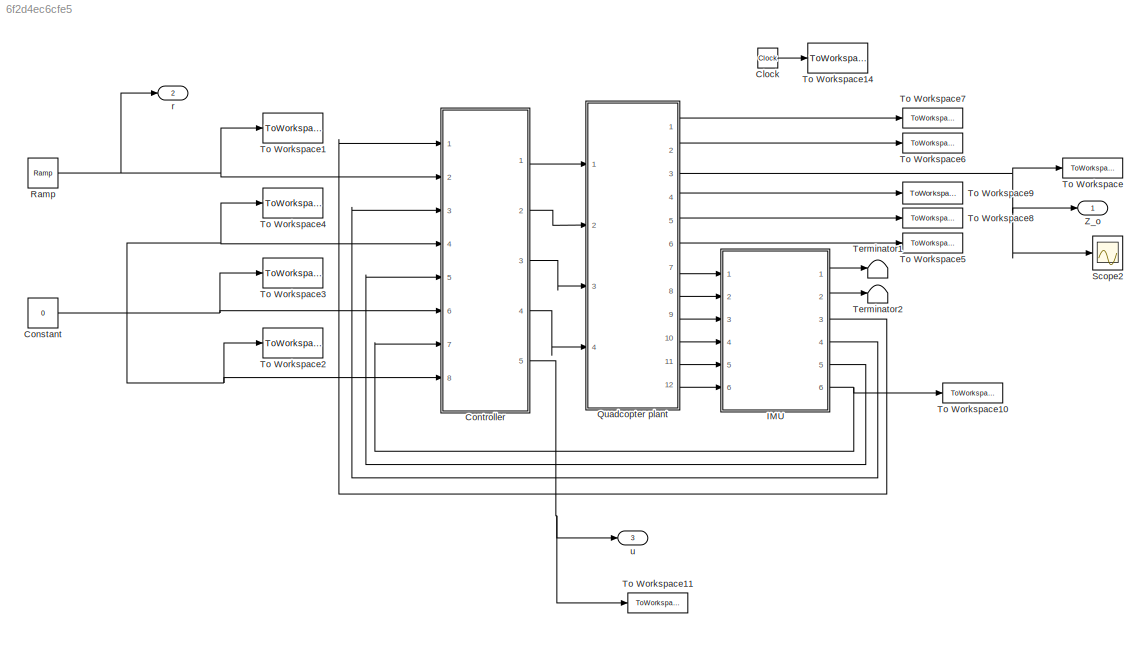
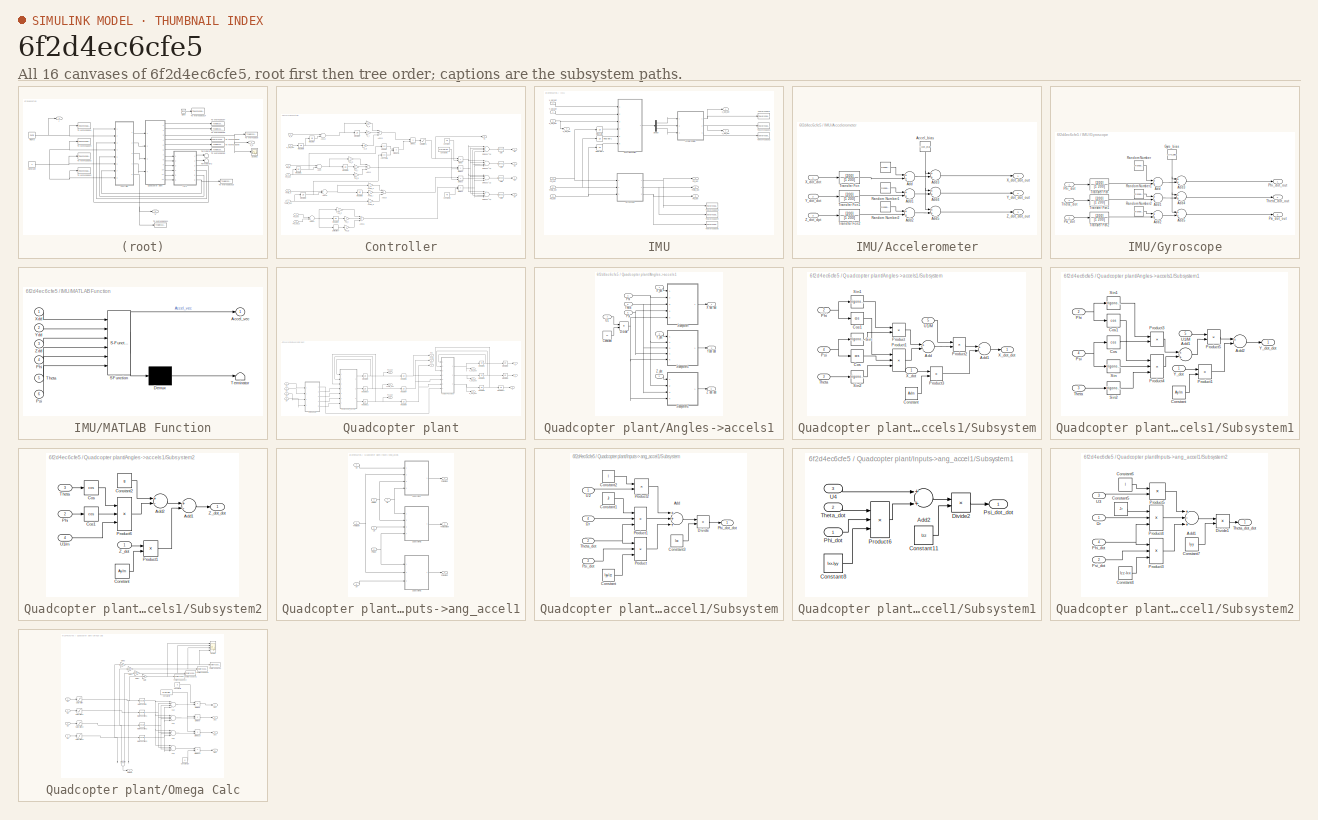
[diagram: thumbnail index - all 16 canvases of the model, root first then tree order]
MODEL slx_6f2d4ec6cfe5
KIND model
CONFIG AbsTol = auto
CONFIG EnableMultiTasking = off
CONFIG FixedStep = 0.001
CONFIG MaxStep = 1e-3
CONFIG MinStep = 1e-4
CONFIG RelTol = 1e-5
CONFIG SampleTimeConstraint = Unconstrained
CONFIG Solver = VariableStepAuto
CONFIG SolverName = VariableStepAuto
CONFIG StartTime = 0
CONFIG StopTime = 5
BLOCK [Clock] Clock
BLOCK [Constant] Constant
  Value = 0
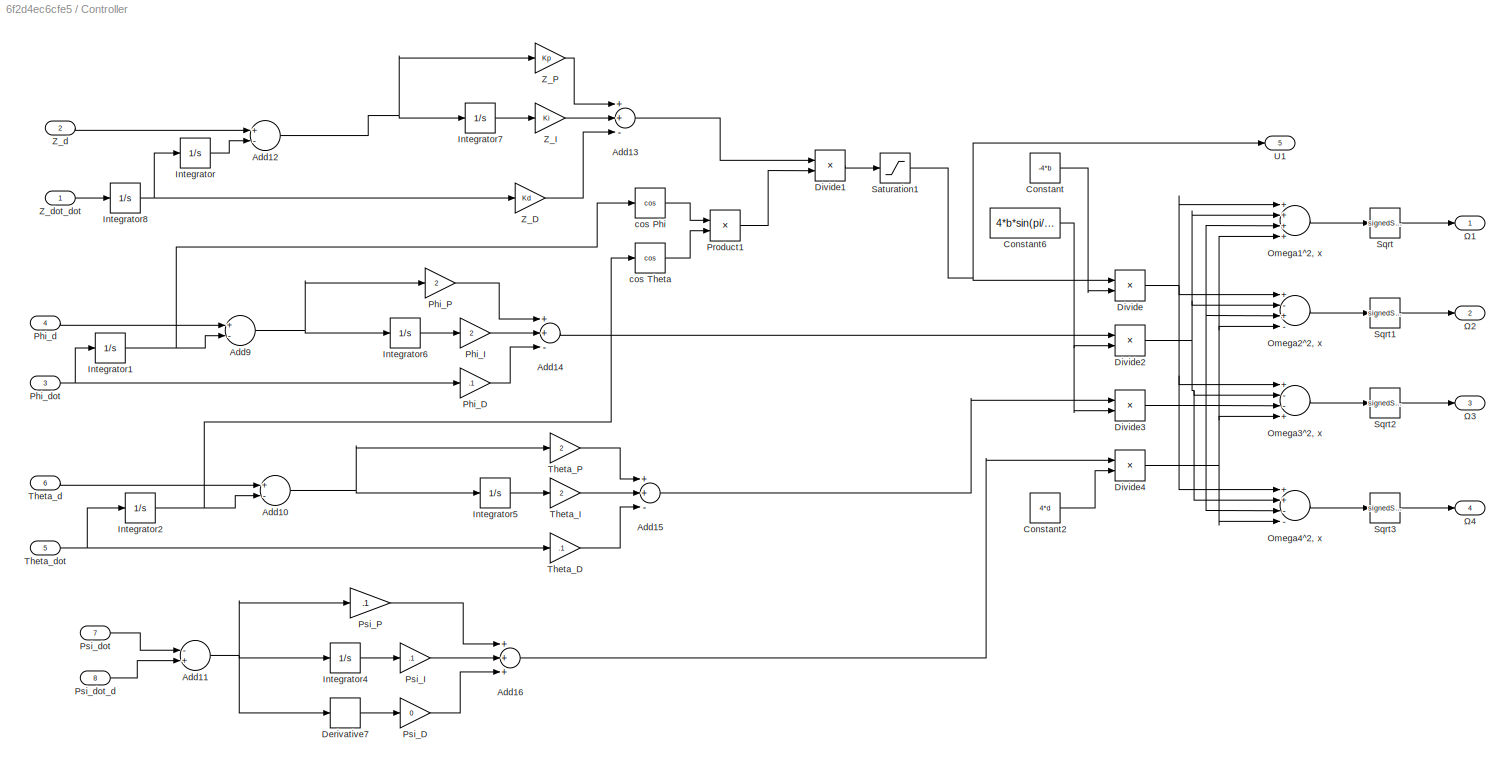
BLOCK [SubSystem] Controller
  Ports = [8, 5]
  RequestExecContextInheritance = off
  Variant = off
BLOCK [Sum] Controller/Add10
  InputSameDT = off
  Inputs = +-
  OutDataTypeStr = Inherit: Inherit via internal rule
  Ports = [2, 1]
  SaturateOnIntegerOverflow = off
BLOCK [Sum] Controller/Add11
  InputSameDT = off
  Inputs = -+
  OutDataTypeStr = Inherit: Inherit via internal rule
  Ports = [2, 1]
  SaturateOnIntegerOverflow = off
BLOCK [Sum] Controller/Add12
  InputSameDT = off
  Inputs = +-
  OutDataTypeStr = Inherit: Inherit via internal rule
  Ports = [2, 1]
  SaturateOnIntegerOverflow = off
BLOCK [Sum] Controller/Add13
  InputSameDT = off
  Inputs = ++-
  OutDataTypeStr = Inherit: Inherit via internal rule
  Ports = [3, 1]
  SaturateOnIntegerOverflow = off
BLOCK [Sum] Controller/Add14
  InputSameDT = off
  Inputs = ++-
  OutDataTypeStr = Inherit: Inherit via internal rule
  Ports = [3, 1]
  SaturateOnIntegerOverflow = off
BLOCK [Sum] Controller/Add15
  InputSameDT = off
  Inputs = ++-
  OutDataTypeStr = Inherit: Inherit via internal rule
  Ports = [3, 1]
  SaturateOnIntegerOverflow = off
BLOCK [Sum] Controller/Add16
  InputSameDT = off
  Inputs = +++
  OutDataTypeStr = Inherit: Inherit via internal rule
  Ports = [3, 1]
  SaturateOnIntegerOverflow = off
BLOCK [Sum] Controller/Add9
  InputSameDT = off
  Inputs = +-
  OutDataTypeStr = Inherit: Inherit via internal rule
  Ports = [2, 1]
  SaturateOnIntegerOverflow = off
BLOCK [Constant] Controller/Constant
  Value = -4*b
BLOCK [Constant] Controller/Constant2
  Value = 4*d
BLOCK [Constant] Controller/Constant6
  Value = 4*b*sin(pi/4)*l
BLOCK [Derivative] Controller/Derivative7
BLOCK [Product] Controller/Divide
  InputSameDT = off
  Inputs = */
  OutDataTypeStr = Inherit: Inherit via internal rule
  Ports = [2, 1]
  RndMeth = Floor
  SaturateOnIntegerOverflow = off
BLOCK [Product] Controller/Divide1
  InputSameDT = off
  Inputs = */
  OutDataTypeStr = Inherit: Inherit via internal rule
  Ports = [2, 1]
  RndMeth = Floor
  SaturateOnIntegerOverflow = off
BLOCK [Product] Controller/Divide2
  InputSameDT = off
  Inputs = */
  OutDataTypeStr = Inherit: Inherit via internal rule
  Ports = [2, 1]
  RndMeth = Floor
  SaturateOnIntegerOverflow = off
BLOCK [Product] Controller/Divide3
  InputSameDT = off
  Inputs = */
  OutDataTypeStr = Inherit: Inherit via internal rule
  Ports = [2, 1]
  RndMeth = Floor
  SaturateOnIntegerOverflow = off
BLOCK [Product] Controller/Divide4
  InputSameDT = off
  Inputs = */
  OutDataTypeStr = Inherit: Inherit via internal rule
  Ports = [2, 1]
  RndMeth = Floor
  SaturateOnIntegerOverflow = off
BLOCK [Integrator] Controller/Integrator
  LimitOutput = on
  Ports = [1, 1]
  UpperSaturationLimit = 0
BLOCK [Integrator] Controller/Integrator1
  Ports = [1, 1]
  WrapState = on
BLOCK [Integrator] Controller/Integrator2
  Ports = [1, 1]
  WrapState = on
BLOCK [Integrator] Controller/Integrator4
  Ports = [1, 1]
BLOCK [Integrator] Controller/Integrator5
  Ports = [1, 1]
BLOCK [Integrator] Controller/Integrator6
  Ports = [1, 1]
BLOCK [Integrator] Controller/Integrator7
  Ports = [1, 1]
BLOCK [Integrator] Controller/Integrator8
  Ports = [1, 1]
BLOCK [Sum] Controller/Omega1^2, x
  InputSameDT = off
  Inputs = ++++
  OutDataTypeStr = Inherit: Inherit via internal rule
  Ports = [4, 1]
  SaturateOnIntegerOverflow = off
BLOCK [Sum] Controller/Omega2^2, x
  InputSameDT = off
  Inputs = +-+-
  OutDataTypeStr = Inherit: Inherit via internal rule
  Ports = [4, 1]
  SaturateOnIntegerOverflow = off
BLOCK [Sum] Controller/Omega3^2, x
  InputSameDT = off
  Inputs = +--+
  OutDataTypeStr = Inherit: Inherit via internal rule
  Ports = [4, 1]
  SaturateOnIntegerOverflow = off
BLOCK [Sum] Controller/Omega4^2, x
  InputSameDT = off
  Inputs = ++--
  OutDataTypeStr = Inherit: Inherit via internal rule
  Ports = [4, 1]
  SaturateOnIntegerOverflow = off
BLOCK [Gain] Controller/Phi_D
  Gain = .1
  OutDataTypeStr = Inherit: Inherit via internal rule
  ParamDataTypeStr = Inherit: Inherit via internal rule
  SaturateOnIntegerOverflow = off
BLOCK [Gain] Controller/Phi_I
  Gain = 2
  OutDataTypeStr = Inherit: Inherit via internal rule
  ParamDataTypeStr = Inherit: Inherit via internal rule
  SaturateOnIntegerOverflow = off
BLOCK [Gain] Controller/Phi_P
  Gain = 2
  OutDataTypeStr = Inherit: Inherit via internal rule
  ParamDataTypeStr = Inherit: Inherit via internal rule
  SaturateOnIntegerOverflow = off
BLOCK [Inport] Controller/Phi_d
  IconDisplay = Port number
  Port = 4
BLOCK [Inport] Controller/Phi_dot
  IconDisplay = Port number
  Port = 3
BLOCK [Product] Controller/Product1
  InputSameDT = off
  OutDataTypeStr = Inherit: Inherit via internal rule
  Ports = [2, 1]
  SaturateOnIntegerOverflow = off
BLOCK [Gain] Controller/Psi_D
  Gain = 0
  OutDataTypeStr = Inherit: Inherit via internal rule
  ParamDataTypeStr = Inherit: Inherit via internal rule
  SaturateOnIntegerOverflow = off
BLOCK [Gain] Controller/Psi_I
  Gain = .1
  OutDataTypeStr = Inherit: Inherit via internal rule
  ParamDataTypeStr = Inherit: Inherit via internal rule
  SaturateOnIntegerOverflow = off
BLOCK [Gain] Controller/Psi_P
  Gain = .1
  OutDataTypeStr = Inherit: Inherit via internal rule
  ParamDataTypeStr = Inherit: Inherit via internal rule
  SaturateOnIntegerOverflow = off
BLOCK [Inport] Controller/Psi_dot
  IconDisplay = Port number
  Port = 7
BLOCK [Inport] Controller/Psi_dot_d
  IconDisplay = Port number
  Port = 8
BLOCK [Saturate] Controller/Saturation1
  InputPortMap = u0
  LowerLimit = -inf
  Ports = [1, 1]
  UpperLimit = 0
BLOCK [Sqrt] Controller/Sqrt
  Operator = signedSqrt
BLOCK [Sqrt] Controller/Sqrt1
  Operator = signedSqrt
BLOCK [Sqrt] Controller/Sqrt2
  Operator = signedSqrt
BLOCK [Sqrt] Controller/Sqrt3
  Operator = signedSqrt
BLOCK [Gain] Controller/Theta_D
  Gain = .1
  OutDataTypeStr = Inherit: Inherit via internal rule
  ParamDataTypeStr = Inherit: Inherit via internal rule
  SaturateOnIntegerOverflow = off
BLOCK [Gain] Controller/Theta_I
  Gain = 2
  OutDataTypeStr = Inherit: Inherit via internal rule
  ParamDataTypeStr = Inherit: Inherit via internal rule
  SaturateOnIntegerOverflow = off
BLOCK [Gain] Controller/Theta_P
  Gain = 2
  OutDataTypeStr = Inherit: Inherit via internal rule
  ParamDataTypeStr = Inherit: Inherit via internal rule
  SaturateOnIntegerOverflow = off
BLOCK [Inport] Controller/Theta_d
  IconDisplay = Port number
  Port = 6
BLOCK [Inport] Controller/Theta_dot
  IconDisplay = Port number
  Port = 5
BLOCK [Outport] Controller/U1
  IconDisplay = Port number
  Port = 5
BLOCK [Gain] Controller/Z_D
  Gain = Kd
  OutDataTypeStr = Inherit: Inherit via internal rule
  ParamDataTypeStr = Inherit: Inherit via internal rule
  SaturateOnIntegerOverflow = off
BLOCK [Gain] Controller/Z_I 
  Gain = Ki
  OutDataTypeStr = Inherit: Inherit via internal rule
  ParamDataTypeStr = Inherit: Inherit via internal rule
  SaturateOnIntegerOverflow = off
BLOCK [Gain] Controller/Z_P
  Gain = Kp
  OutDataTypeStr = Inherit: Inherit via internal rule
  ParamDataTypeStr = Inherit: Inherit via internal rule
  SaturateOnIntegerOverflow = off
BLOCK [Inport] Controller/Z_d
  IconDisplay = Port number
  Port = 2
BLOCK [Inport] Controller/Z_dot_dot
  IconDisplay = Port number
BLOCK [Trigonometry] Controller/cos Phi
  Operator = cos
  Ports = [1, 1]
BLOCK [Trigonometry] Controller/cos Theta
  Operator = cos
  Ports = [1, 1]
BLOCK [Outport] Controller/Ω1
  IconDisplay = Port number
BLOCK [Outport] Controller/Ω2
  IconDisplay = Port number
  Port = 2
BLOCK [Outport] Controller/Ω3
  IconDisplay = Port number
  Port = 3
BLOCK [Outport] Controller/Ω4
  IconDisplay = Port number
  Port = 4
BLOCK [SubSystem] IMU
  Ports = [6, 6]
  RequestExecContextInheritance = off
  Variant = off
BLOCK [SubSystem] IMU/Accelerometer
  Ports = [3, 3]
  RequestExecContextInheritance = off
  Variant = off
BLOCK [RandomNumber] IMU/Accelerometer/ 
  Commented = on
  SampleTime = 0.001
  Seed = 1
  Variance = 0.0001
BLOCK [Constant] IMU/Accelerometer/Accel_bias
  Value = Accel_bias
BLOCK [Sum] IMU/Accelerometer/Add
  InputSameDT = off
  OutDataTypeStr = Inherit: Inherit via internal rule
  Ports = [2, 1]
  SaturateOnIntegerOverflow = off
BLOCK [Sum] IMU/Accelerometer/Add1
  InputSameDT = off
  OutDataTypeStr = Inherit: Inherit via internal rule
  Ports = [2, 1]
  SaturateOnIntegerOverflow = off
BLOCK [Sum] IMU/Accelerometer/Add2
  InputSameDT = off
  OutDataTypeStr = Inherit: Inherit via internal rule
  Ports = [2, 1]
  SaturateOnIntegerOverflow = off
BLOCK [Sum] IMU/Accelerometer/Add3
  InputSameDT = off
  OutDataTypeStr = Inherit: Inherit via internal rule
  Ports = [2, 1]
  SaturateOnIntegerOverflow = off
BLOCK [Sum] IMU/Accelerometer/Add4
  InputSameDT = off
  OutDataTypeStr = Inherit: Inherit via internal rule
  Ports = [2, 1]
  SaturateOnIntegerOverflow = off
BLOCK [Sum] IMU/Accelerometer/Add5
  InputSameDT = off
  OutDataTypeStr = Inherit: Inherit via internal rule
  Ports = [2, 1]
  SaturateOnIntegerOverflow = off
BLOCK [RandomNumber] IMU/Accelerometer/Random Number1
  Commented = on
  SampleTime = 0.001
  Seed = 2
  Variance = 0.0001
BLOCK [RandomNumber] IMU/Accelerometer/Random Number2
  Commented = on
  Mean = 0.000
  SampleTime = 0.001
  Seed = 3
  Variance = 0.0001
BLOCK [TransferFcn] IMU/Accelerometer/Transfer Fcn
  Commented = through
  Denominator = [1 200]
  Numerator = [200]
BLOCK [TransferFcn] IMU/Accelerometer/Transfer Fcn1
  Commented = through
  Denominator = [1 200]
  Numerator = [200]
BLOCK [TransferFcn] IMU/Accelerometer/Transfer Fcn2
  Commented = through
  Denominator = [1 200]
  Numerator = [200]
BLOCK [Inport] IMU/Accelerometer/X_dot_dot
  IconDisplay = Port number
BLOCK [Outport] IMU/Accelerometer/X_dot_dot_out
  IconDisplay = Port number
BLOCK [Inport] IMU/Accelerometer/Y_dot_dot 
  IconDisplay = Port number
  Port = 2
BLOCK [Outport] IMU/Accelerometer/Y_dot_dot_out
  IconDisplay = Port number
  Port = 2
BLOCK [Outport] IMU/Accelerometer/Z_dot_dot_out
  IconDisplay = Port number
  Port = 3
BLOCK [Inport] IMU/Accelerometer/Z_dot_dpt 
  IconDisplay = Port number
  Port = 3
BLOCK [Demux] IMU/Demux
  DisplayOption = bar
  Outputs = 3
  Ports = [1, 3]
BLOCK [SubSystem] IMU/Gyroscope
  Ports = [3, 3]
  RequestExecContextInheritance = off
  Variant = off
BLOCK [Sum] IMU/Gyroscope/Add
  InputSameDT = off
  OutDataTypeStr = Inherit: Inherit via internal rule
  Ports = [2, 1]
  SaturateOnIntegerOverflow = off
BLOCK [Sum] IMU/Gyroscope/Add1
  InputSameDT = off
  OutDataTypeStr = Inherit: Inherit via internal rule
  Ports = [2, 1]
  SaturateOnIntegerOverflow = off
BLOCK [Sum] IMU/Gyroscope/Add2
  InputSameDT = off
  OutDataTypeStr = Inherit: Inherit via internal rule
  Ports = [2, 1]
  SaturateOnIntegerOverflow = off
BLOCK [Sum] IMU/Gyroscope/Add3
  InputSameDT = off
  OutDataTypeStr = Inherit: Inherit via internal rule
  Ports = [2, 1]
  SaturateOnIntegerOverflow = off
BLOCK [Sum] IMU/Gyroscope/Add4
  InputSameDT = off
  OutDataTypeStr = Inherit: Inherit via internal rule
  Ports = [2, 1]
  SaturateOnIntegerOverflow = off
BLOCK [Sum] IMU/Gyroscope/Add5
  InputSameDT = off
  OutDataTypeStr = Inherit: Inherit via internal rule
  Ports = [2, 1]
  SaturateOnIntegerOverflow = off
BLOCK [Constant] IMU/Gyroscope/Gyro_bias
  Value = Gyro_bias
BLOCK [Inport] IMU/Gyroscope/Phi_dot
  IconDisplay = Port number
BLOCK [Outport] IMU/Gyroscope/Phi_dot_out
  IconDisplay = Port number
BLOCK [Inport] IMU/Gyroscope/Psi_dot
  IconDisplay = Port number
  Port = 3
BLOCK [Outport] IMU/Gyroscope/Psi_dot_out
  IconDisplay = Port number
  Port = 3
BLOCK [RandomNumber] IMU/Gyroscope/Random Number
  Commented = on
  SampleTime = 0.001
  Seed = 4
  Variance = 0.0001
BLOCK [RandomNumber] IMU/Gyroscope/Random Number1
  Commented = on
  SampleTime = 0.001
  Seed = 5
  Variance = 0.0001
BLOCK [RandomNumber] IMU/Gyroscope/Random Number2
  Commented = on
  SampleTime = 0.001
  Seed = 6
  Variance = 0.0001
BLOCK [Inport] IMU/Gyroscope/Theta_dot
  IconDisplay = Port number
  Port = 2
BLOCK [Outport] IMU/Gyroscope/Theta_dot_out
  IconDisplay = Port number
  Port = 2
BLOCK [TransferFcn] IMU/Gyroscope/Transfer Fcn
  Commented = through
  Denominator = [1 200]
  Numerator = [200]
BLOCK [TransferFcn] IMU/Gyroscope/Transfer Fcn1
  Commented = through
  Denominator = [1 200]
  Numerator = [200]
BLOCK [TransferFcn] IMU/Gyroscope/Transfer Fcn2
  Commented = through
  Denominator = [1 200]
  Numerator = [200]
BLOCK [Integrator] IMU/Integrator
  Ports = [1, 1]
  WrapState = on
BLOCK [Integrator] IMU/Integrator1
  Ports = [1, 1]
  WrapState = on
BLOCK [Integrator] IMU/Integrator2
  Ports = [1, 1]
BLOCK [SubSystem] IMU/MATLAB Function
  ErrorFcn = Stateflow.Translate.translate
  PermitHierarchicalResolution = ExplicitOnly
  Ports = [6, 1]
  RequestExecContextInheritance = off
  SFBlockType = MATLAB Function
  TreatAsAtomicUnit = on
  Variant = off
BLOCK [Demux] IMU/MATLAB Function/ Demux 
  Outputs = 1
  Ports = [1, 1]
BLOCK [S-Function] IMU/MATLAB Function/ SFunction 
  EnableBusSupport = on
  FunctionName = sf_sfun
  PortCounts = [6 2]
  Ports = [6, 2]
  SFcnIsStateOwnerBlock = off
  SFunctionDeploymentMode = off
  Tag = Stateflow S-Function Controlled_simulink_model_optimal 2
BLOCK [Terminator] IMU/MATLAB Function/ Terminator 
BLOCK [Outport] IMU/MATLAB Function/Accel_vec
  IconDisplay = Port number
BLOCK [Inport] IMU/MATLAB Function/Phi
  IconDisplay = Port number
  Port = 4
BLOCK [Inport] IMU/MATLAB Function/Psi
  IconDisplay = Port number
  Port = 6
BLOCK [Inport] IMU/MATLAB Function/Theta
  IconDisplay = Port number
  Port = 5
BLOCK [Inport] IMU/MATLAB Function/Xdd
  IconDisplay = Port number
BLOCK [Inport] IMU/MATLAB Function/Ydd
  IconDisplay = Port number
  Port = 2
BLOCK [Inport] IMU/MATLAB Function/Zdd
  IconDisplay = Port number
  Port = 3
BLOCK [Inport] IMU/Phi_dot
  IconDisplay = Port number
  Port = 4
BLOCK [Outport] IMU/Phi_dot 
  IconDisplay = Port number
  Port = 4
BLOCK [Inport] IMU/Psi_dot
  IconDisplay = Port number
  Port = 6
BLOCK [Outport] IMU/Psi_dot 
  IconDisplay = Port number
  Port = 6
BLOCK [Inport] IMU/Theta_dot
  IconDisplay = Port number
  Port = 5
BLOCK [Outport] IMU/Theta_dot 
  IconDisplay = Port number
  Port = 5
BLOCK [ToWorkspace] IMU/To Workspace
  FixptAsFi = on
  MaxDataPoints = inf
  Ports = [1]
  SampleTime = 0.001
  Save2DSignal = 2-D array (concatenate along first dimension)
  VariableName = X_dot_dot
BLOCK [ToWorkspace] IMU/To Workspace1
  FixptAsFi = on
  MaxDataPoints = inf
  Ports = [1]
  SampleTime = 0.001
  Save2DSignal = 2-D array (concatenate along first dimension)
  VariableName = Y_dot_dot
BLOCK [ToWorkspace] IMU/To Workspace2
  FixptAsFi = on
  MaxDataPoints = inf
  Ports = [1]
  SampleTime = 0.001
  Save2DSignal = 2-D array (concatenate along first dimension)
  VariableName = Z_dot_dot
BLOCK [ToWorkspace] IMU/To Workspace3
  FixptAsFi = on
  MaxDataPoints = inf
  Ports = [1]
  SampleTime = 0.001
  Save2DSignal = 2-D array (concatenate along first dimension)
  VariableName = Phi_dot
BLOCK [ToWorkspace] IMU/To Workspace4
  FixptAsFi = on
  MaxDataPoints = inf
  Ports = [1]
  SampleTime = 0.001
  Save2DSignal = 2-D array (concatenate along first dimension)
  VariableName = Theta_dot
BLOCK [ToWorkspace] IMU/To Workspace5
  FixptAsFi = on
  MaxDataPoints = inf
  Ports = [1]
  SampleTime = 0.001
  Save2DSignal = 2-D array (concatenate along first dimension)
  VariableName = Psi_dot
BLOCK [Inport] IMU/X_dot_dot
  IconDisplay = Port number
BLOCK [Outport] IMU/X_dot_dot 
  IconDisplay = Port number
BLOCK [Inport] IMU/Y_dot_dot
  IconDisplay = Port number
  Port = 2
BLOCK [Outport] IMU/Y_dot_dot 
  IconDisplay = Port number
  Port = 2
BLOCK [Inport] IMU/Z_dot_dot
  IconDisplay = Port number
  Port = 3
BLOCK [Outport] IMU/Z_dot_dot 
  IconDisplay = Port number
  Port = 3
BLOCK [SubSystem] Quadcopter plant
  Ports = [4, 12]
  RequestExecContextInheritance = off
  Variant = off
BLOCK [SubSystem] Quadcopter plant/Angles->accels1
  Ports = [7, 3]
  RequestExecContextInheritance = off
  Variant = off
BLOCK [Constant] Quadcopter plant/Angles->accels1/Constant
  Value = m
BLOCK [Product] Quadcopter plant/Angles->accels1/Divide
  InputSameDT = off
  Inputs = */
  OutDataTypeStr = Inherit: Inherit via internal rule
  Ports = [2, 1]
  RndMeth = Floor
  SaturateOnIntegerOverflow = off
BLOCK [Inport] Quadcopter plant/Angles->accels1/Phi
  IconDisplay = Port number
  Port = 4
BLOCK [Inport] Quadcopter plant/Angles->accels1/Psi
  IconDisplay = Port number
  Port = 6
BLOCK [SubSystem] Quadcopter plant/Angles->accels1/Subsystem
  Ports = [5, 1]
  RequestExecContextInheritance = off
  Variant = off
BLOCK [Sum] Quadcopter plant/Angles->accels1/Subsystem/Add
  InputSameDT = off
  Inputs = +-
  OutDataTypeStr = Inherit: Inherit via internal rule
  Ports = [2, 1]
  SaturateOnIntegerOverflow = off
BLOCK [Sum] Quadcopter plant/Angles->accels1/Subsystem/Add1
  InputSameDT = off
  Inputs = +-
  OutDataTypeStr = Inherit: Inherit via internal rule
  Ports = [2, 1]
  SaturateOnIntegerOverflow = off
BLOCK [Constant] Quadcopter plant/Angles->accels1/Subsystem/Constant
  Value = Ax/m
BLOCK [Trigonometry] Quadcopter plant/Angles->accels1/Subsystem/Cos
  Operator = cos
  Ports = [1, 1]
BLOCK [Trigonometry] Quadcopter plant/Angles->accels1/Subsystem/Cos1
  Operator = cos
  Ports = [1, 1]
BLOCK [Inport] Quadcopter plant/Angles->accels1/Subsystem/Phi
  IconDisplay = Port number
  Port = 2
BLOCK [Product] Quadcopter plant/Angles->accels1/Subsystem/Product
  InputSameDT = off
  OutDataTypeStr = Inherit: Inherit via internal rule
  Ports = [2, 1]
  RndMeth = Floor
  SaturateOnIntegerOverflow = off
BLOCK [Product] Quadcopter plant/Angles->accels1/Subsystem/Product1
  InputSameDT = off
  Inputs = 3
  OutDataTypeStr = Inherit: Inherit via internal rule
  Ports = [3, 1]
  RndMeth = Floor
  SaturateOnIntegerOverflow = off
BLOCK [Product] Quadcopter plant/Angles->accels1/Subsystem/Product2
  InputSameDT = off
  OutDataTypeStr = Inherit: Inherit via internal rule
  Ports = [2, 1]
  RndMeth = Floor
  SaturateOnIntegerOverflow = off
BLOCK [Product] Quadcopter plant/Angles->accels1/Subsystem/Product3
  InputSameDT = off
  OutDataTypeStr = Inherit: Inherit via internal rule
  Ports = [2, 1]
  RndMeth = Floor
  SaturateOnIntegerOverflow = off
BLOCK [Inport] Quadcopter plant/Angles->accels1/Subsystem/Psi
  IconDisplay = Port number
  Port = 4
BLOCK [Trigonometry] Quadcopter plant/Angles->accels1/Subsystem/Sin
  Ports = [1, 1]
BLOCK [Trigonometry] Quadcopter plant/Angles->accels1/Subsystem/Sin1
  Ports = [1, 1]
BLOCK [Trigonometry] Quadcopter plant/Angles->accels1/Subsystem/Sin2
  Ports = [1, 1]
BLOCK [Inport] Quadcopter plant/Angles->accels1/Subsystem/Theta
  IconDisplay = Port number
  Port = 3
BLOCK [Inport] Quadcopter plant/Angles->accels1/Subsystem/U1//M
  IconDisplay = Port number
  Port = 5
BLOCK [Inport] Quadcopter plant/Angles->accels1/Subsystem/X_dot
  IconDisplay = Port number
BLOCK [Outport] Quadcopter plant/Angles->accels1/Subsystem/X_dot_dot
  IconDisplay = Port number
BLOCK [SubSystem] Quadcopter plant/Angles->accels1/Subsystem1
  Ports = [5, 1]
  RequestExecContextInheritance = off
  Variant = off
BLOCK [Sum] Quadcopter plant/Angles->accels1/Subsystem1/Add1
  InputSameDT = off
  OutDataTypeStr = Inherit: Inherit via internal rule
  Ports = [2, 1]
  SaturateOnIntegerOverflow = off
BLOCK [Sum] Quadcopter plant/Angles->accels1/Subsystem1/Add2
  InputSameDT = off
  Inputs = +-
  OutDataTypeStr = Inherit: Inherit via internal rule
  Ports = [2, 1]
  SaturateOnIntegerOverflow = off
BLOCK [Constant] Quadcopter plant/Angles->accels1/Subsystem1/Constant
  Value = Ay/m
BLOCK [Trigonometry] Quadcopter plant/Angles->accels1/Subsystem1/Cos
  Operator = cos
  Ports = [1, 1]
BLOCK [Trigonometry] Quadcopter plant/Angles->accels1/Subsystem1/Cos1
  Operator = cos
  Ports = [1, 1]
BLOCK [Inport] Quadcopter plant/Angles->accels1/Subsystem1/Phi
  IconDisplay = Port number
  Port = 2
BLOCK [Product] Quadcopter plant/Angles->accels1/Subsystem1/Product1
  InputSameDT = off
  OutDataTypeStr = Inherit: Inherit via internal rule
  Ports = [2, 1]
  RndMeth = Floor
  SaturateOnIntegerOverflow = off
BLOCK [Product] Quadcopter plant/Angles->accels1/Subsystem1/Product3
  InputSameDT = off
  OutDataTypeStr = Inherit: Inherit via internal rule
  Ports = [2, 1]
  RndMeth = Floor
  SaturateOnIntegerOverflow = off
BLOCK [Product] Quadcopter plant/Angles->accels1/Subsystem1/Product4
  InputSameDT = off
  Inputs = 3
  OutDataTypeStr = Inherit: Inherit via internal rule
  Ports = [3, 1]
  RndMeth = Floor
  SaturateOnIntegerOverflow = off
BLOCK [Product] Quadcopter plant/Angles->accels1/Subsystem1/Product5
  InputSameDT = off
  OutDataTypeStr = Inherit: Inherit via internal rule
  Ports = [2, 1]
  RndMeth = Floor
  SaturateOnIntegerOverflow = off
BLOCK [Inport] Quadcopter plant/Angles->accels1/Subsystem1/Psi
  IconDisplay = Port number
  Port = 4
BLOCK [Trigonometry] Quadcopter plant/Angles->accels1/Subsystem1/Sin
  Ports = [1, 1]
BLOCK [Trigonometry] Quadcopter plant/Angles->accels1/Subsystem1/Sin1
  Ports = [1, 1]
BLOCK [Trigonometry] Quadcopter plant/Angles->accels1/Subsystem1/Sin2
  Ports = [1, 1]
BLOCK [Inport] Quadcopter plant/Angles->accels1/Subsystem1/Theta
  IconDisplay = Port number
  Port = 3
BLOCK [Inport] Quadcopter plant/Angles->accels1/Subsystem1/U1//M
  IconDisplay = Port number
  Port = 5
BLOCK [Inport] Quadcopter plant/Angles->accels1/Subsystem1/Y_dot
  IconDisplay = Port number
BLOCK [Outport] Quadcopter plant/Angles->accels1/Subsystem1/Y_dot_dot
  IconDisplay = Port number
BLOCK [SubSystem] Quadcopter plant/Angles->accels1/Subsystem2
  Ports = [4, 1]
  RequestExecContextInheritance = off
  Variant = off
BLOCK [Sum] Quadcopter plant/Angles->accels1/Subsystem2/Add1
  InputSameDT = off
  Inputs = +-
  OutDataTypeStr = Inherit: Inherit via internal rule
  Ports = [2, 1]
  SaturateOnIntegerOverflow = off
BLOCK [Sum] Quadcopter plant/Angles->accels1/Subsystem2/Add2
  InputSameDT = off
  Inputs = +-
  OutDataTypeStr = Inherit: Inherit via internal rule
  Ports = [2, 1]
  SaturateOnIntegerOverflow = off
BLOCK [Constant] Quadcopter plant/Angles->accels1/Subsystem2/Constant
  Value = Ay/m
BLOCK [Constant] Quadcopter plant/Angles->accels1/Subsystem2/Constant2
  Value = g
BLOCK [Trigonometry] Quadcopter plant/Angles->accels1/Subsystem2/Cos
  Operator = cos
  Ports = [1, 1]
BLOCK [Trigonometry] Quadcopter plant/Angles->accels1/Subsystem2/Cos1
  Operator = cos
  Ports = [1, 1]
BLOCK [Inport] Quadcopter plant/Angles->accels1/Subsystem2/Phi
  IconDisplay = Port number
  Port = 2
BLOCK [Product] Quadcopter plant/Angles->accels1/Subsystem2/Product1
  InputSameDT = off
  OutDataTypeStr = Inherit: Inherit via internal rule
  Ports = [2, 1]
  RndMeth = Floor
  SaturateOnIntegerOverflow = off
BLOCK [Product] Quadcopter plant/Angles->accels1/Subsystem2/Product6
  InputSameDT = off
  Inputs = 3
  OutDataTypeStr = Inherit: Inherit via internal rule
  Ports = [3, 1]
  RndMeth = Floor
  SaturateOnIntegerOverflow = off
BLOCK [Inport] Quadcopter plant/Angles->accels1/Subsystem2/Theta
  IconDisplay = Port number
  Port = 3
BLOCK [Inport] Quadcopter plant/Angles->accels1/Subsystem2/U1//m
  IconDisplay = Port number
  Port = 4
BLOCK [Inport] Quadcopter plant/Angles->accels1/Subsystem2/Z_dot
  IconDisplay = Port number
BLOCK [Outport] Quadcopter plant/Angles->accels1/Subsystem2/Z_dot_dot
  IconDisplay = Port number
BLOCK [Inport] Quadcopter plant/Angles->accels1/Theta
  IconDisplay = Port number
  Port = 5
BLOCK [Inport] Quadcopter plant/Angles->accels1/U1
  IconDisplay = Port number
  Port = 7
BLOCK [Outport] Quadcopter plant/Angles->accels1/X dot dot
  IconDisplay = Port number
BLOCK [Inport] Quadcopter plant/Angles->accels1/X_dot
  IconDisplay = Port number
BLOCK [Inport] Quadcopter plant/Angles->accels1/Y_dot
  IconDisplay = Port number
  Port = 2
BLOCK [Outport] Quadcopter plant/Angles->accels1/Ydot dot
  IconDisplay = Port number
  Port = 2
BLOCK [Outport] Quadcopter plant/Angles->accels1/Z dot dot
  IconDisplay = Port number
  Port = 3
BLOCK [Inport] Quadcopter plant/Angles->accels1/Z_dot
  IconDisplay = Port number
  Port = 3
BLOCK [SubSystem] Quadcopter plant/Inputs->ang_accel1
  Ports = [7, 3]
  RequestExecContextInheritance = off
  Variant = off
BLOCK [Inport] Quadcopter plant/Inputs->ang_accel1/Phi dot
  IconDisplay = Port number
BLOCK [Outport] Quadcopter plant/Inputs->ang_accel1/Phi dot dot
  IconDisplay = Port number
BLOCK [Inport] Quadcopter plant/Inputs->ang_accel1/Psi dot
  IconDisplay = Port number
  Port = 3
BLOCK [Outport] Quadcopter plant/Inputs->ang_accel1/Psi dot dot
  IconDisplay = Port number
  Port = 3
BLOCK [SubSystem] Quadcopter plant/Inputs->ang_accel1/Subsystem
  Ports = [4, 1]
  RequestExecContextInheritance = off
  Variant = off
BLOCK [Sum] Quadcopter plant/Inputs->ang_accel1/Subsystem/Add
  InputSameDT = off
  Inputs = +++
  OutDataTypeStr = Inherit: Inherit via internal rule
  Ports = [3, 1]
  SaturateOnIntegerOverflow = off
BLOCK [Constant] Quadcopter plant/Inputs->ang_accel1/Subsystem/Constant
  Value = Iyy-Izz
BLOCK [Constant] Quadcopter plant/Inputs->ang_accel1/Subsystem/Constant1
  Value = Jr
BLOCK [Constant] Quadcopter plant/Inputs->ang_accel1/Subsystem/Constant2
  Value = l
BLOCK [Constant] Quadcopter plant/Inputs->ang_accel1/Subsystem/Constant3
  Value = Ixx
BLOCK [Product] Quadcopter plant/Inputs->ang_accel1/Subsystem/Divide
  InputSameDT = off
  Inputs = */
  OutDataTypeStr = Inherit: Inherit via internal rule
  Ports = [2, 1]
  RndMeth = Floor
  SaturateOnIntegerOverflow = off
BLOCK [Outport] Quadcopter plant/Inputs->ang_accel1/Subsystem/Phi_dot_dot
  IconDisplay = Port number
BLOCK [Product] Quadcopter plant/Inputs->ang_accel1/Subsystem/Product
  InputSameDT = off
  Inputs = 3
  OutDataTypeStr = Inherit: Inherit via internal rule
  Ports = [3, 1]
  RndMeth = Floor
  SaturateOnIntegerOverflow = off
BLOCK [Product] Quadcopter plant/Inputs->ang_accel1/Subsystem/Product1
  InputSameDT = off
  Inputs = 3
  OutDataTypeStr = Inherit: Inherit via internal rule
  Ports = [3, 1]
  RndMeth = Floor
  SaturateOnIntegerOverflow = off
BLOCK [Product] Quadcopter plant/Inputs->ang_accel1/Subsystem/Product2
  InputSameDT = off
  OutDataTypeStr = Inherit: Inherit via internal rule
  Ports = [2, 1]
  RndMeth = Floor
  SaturateOnIntegerOverflow = off
BLOCK [Inport] Quadcopter plant/Inputs->ang_accel1/Subsystem/Psi_dot
  IconDisplay = Port number
  Port = 3
BLOCK [Inport] Quadcopter plant/Inputs->ang_accel1/Subsystem/Theta_dot
  IconDisplay = Port number
  Port = 2
BLOCK [Inport] Quadcopter plant/Inputs->ang_accel1/Subsystem/U2
  IconDisplay = Port number
BLOCK [Inport] Quadcopter plant/Inputs->ang_accel1/Subsystem/Ωr
  IconDisplay = Port number
  Port = 4
BLOCK [SubSystem] Quadcopter plant/Inputs->ang_accel1/Subsystem1
  Ports = [3, 1]
  RequestExecContextInheritance = off
  Variant = off
BLOCK [Sum] Quadcopter plant/Inputs->ang_accel1/Subsystem1/Add2
  InputSameDT = off
  OutDataTypeStr = Inherit: Inherit via internal rule
  Ports = [2, 1]
  SaturateOnIntegerOverflow = off
BLOCK [Constant] Quadcopter plant/Inputs->ang_accel1/Subsystem1/Constant11
  Value = Izz
BLOCK [Constant] Quadcopter plant/Inputs->ang_accel1/Subsystem1/Constant8
  Value = Ixx-Iyy
BLOCK [Product] Quadcopter plant/Inputs->ang_accel1/Subsystem1/Divide2
  InputSameDT = off
  Inputs = */
  OutDataTypeStr = Inherit: Inherit via internal rule
  Ports = [2, 1]
  RndMeth = Floor
  SaturateOnIntegerOverflow = off
BLOCK [Inport] Quadcopter plant/Inputs->ang_accel1/Subsystem1/Phi_dot
  IconDisplay = Port number
BLOCK [Product] Quadcopter plant/Inputs->ang_accel1/Subsystem1/Product6
  InputSameDT = off
  Inputs = 3
  OutDataTypeStr = Inherit: Inherit via internal rule
  Ports = [3, 1]
  RndMeth = Floor
  SaturateOnIntegerOverflow = off
BLOCK [Outport] Quadcopter plant/Inputs->ang_accel1/Subsystem1/Psi_dot_dot
  IconDisplay = Port number
BLOCK [Inport] Quadcopter plant/Inputs->ang_accel1/Subsystem1/Theta_dot
  IconDisplay = Port number
  Port = 2
BLOCK [Inport] Quadcopter plant/Inputs->ang_accel1/Subsystem1/U4
  IconDisplay = Port number
  Port = 3
BLOCK [SubSystem] Quadcopter plant/Inputs->ang_accel1/Subsystem2
  Ports = [4, 1]
  RequestExecContextInheritance = off
  Variant = off
BLOCK [Sum] Quadcopter plant/Inputs->ang_accel1/Subsystem2/Add1
  InputSameDT = off
  Inputs = +-+
  OutDataTypeStr = Inherit: Inherit via internal rule
  Ports = [3, 1]
  SaturateOnIntegerOverflow = off
BLOCK [Constant] Quadcopter plant/Inputs->ang_accel1/Subsystem2/Constant4
  Value = Izz-Ixx
BLOCK [Constant] Quadcopter plant/Inputs->ang_accel1/Subsystem2/Constant5
  Value = Jr
BLOCK [Constant] Quadcopter plant/Inputs->ang_accel1/Subsystem2/Constant6
  Value = l
BLOCK [Constant] Quadcopter plant/Inputs->ang_accel1/Subsystem2/Constant7
  Value = Iyy
BLOCK [Product] Quadcopter plant/Inputs->ang_accel1/Subsystem2/Divide1
  InputSameDT = off
  Inputs = */
  OutDataTypeStr = Inherit: Inherit via internal rule
  Ports = [2, 1]
  RndMeth = Floor
  SaturateOnIntegerOverflow = off
BLOCK [Inport] Quadcopter plant/Inputs->ang_accel1/Subsystem2/Phi_dot
  IconDisplay = Port number
  Port = 4
BLOCK [Product] Quadcopter plant/Inputs->ang_accel1/Subsystem2/Product3
  InputSameDT = off
  Inputs = 3
  OutDataTypeStr = Inherit: Inherit via internal rule
  Ports = [3, 1]
  RndMeth = Floor
  SaturateOnIntegerOverflow = off
BLOCK [Product] Quadcopter plant/Inputs->ang_accel1/Subsystem2/Product4
  InputSameDT = off
  Inputs = 3
  OutDataTypeStr = Inherit: Inherit via internal rule
  Ports = [3, 1]
  RndMeth = Floor
  SaturateOnIntegerOverflow = off
BLOCK [Product] Quadcopter plant/Inputs->ang_accel1/Subsystem2/Product5
  InputSameDT = off
  OutDataTypeStr = Inherit: Inherit via internal rule
  Ports = [2, 1]
  RndMeth = Floor
  SaturateOnIntegerOverflow = off
BLOCK [Inport] Quadcopter plant/Inputs->ang_accel1/Subsystem2/Psi_dot
  IconDisplay = Port number
  Port = 2
BLOCK [Outport] Quadcopter plant/Inputs->ang_accel1/Subsystem2/Theta_dot_dot
  IconDisplay = Port number
BLOCK [Inport] Quadcopter plant/Inputs->ang_accel1/Subsystem2/U3
  IconDisplay = Port number
  Port = 3
BLOCK [Inport] Quadcopter plant/Inputs->ang_accel1/Subsystem2/Ωr
  IconDisplay = Port number
BLOCK [Inport] Quadcopter plant/Inputs->ang_accel1/Theta dot
  IconDisplay = Port number
  Port = 2
BLOCK [Outport] Quadcopter plant/Inputs->ang_accel1/Theta dot dot
  IconDisplay = Port number
  Port = 2
BLOCK [Inport] Quadcopter plant/Inputs->ang_accel1/U2
  IconDisplay = Port number
  Port = 4
BLOCK [Inport] Quadcopter plant/Inputs->ang_accel1/U3
  IconDisplay = Port number
  Port = 5
BLOCK [Inport] Quadcopter plant/Inputs->ang_accel1/U4
  IconDisplay = Port number
  Port = 6
BLOCK [Inport] Quadcopter plant/Inputs->ang_accel1/Ωr
  IconDisplay = Port number
  Port = 7
BLOCK [Integrator] Quadcopter plant/Integrator1
  Ports = [1, 1]
BLOCK [Integrator] Quadcopter plant/Integrator10
  IgnoreLimit = on
  Ports = [1, 1]
BLOCK [Integrator] Quadcopter plant/Integrator11
  LowerSaturationLimit = -10000
  Ports = [1, 1]
  UpperSaturationLimit = 10000
BLOCK [Integrator] Quadcopter plant/Integrator12
  LimitOutput = on
  Ports = [1, 1]
  UpperSaturationLimit = 0
BLOCK [Integrator] Quadcopter plant/Integrator2
  Ports = [1, 1]
BLOCK [Integrator] Quadcopter plant/Integrator3
  Ports = [1, 1]
BLOCK [Integrator] Quadcopter plant/Integrator4
  Ports = [1, 1]
BLOCK [Integrator] Quadcopter plant/Integrator5
  Ports = [1, 1]
BLOCK [Integrator] Quadcopter plant/Integrator6
  Ports = [1, 1]
  WrapState = on
BLOCK [Integrator] Quadcopter plant/Integrator7
  Ports = [1, 1]
  WrapState = on
BLOCK [Integrator] Quadcopter plant/Integrator8
  Ports = [1, 1]
BLOCK [Integrator] Quadcopter plant/Integrator9
  Ports = [1, 1]
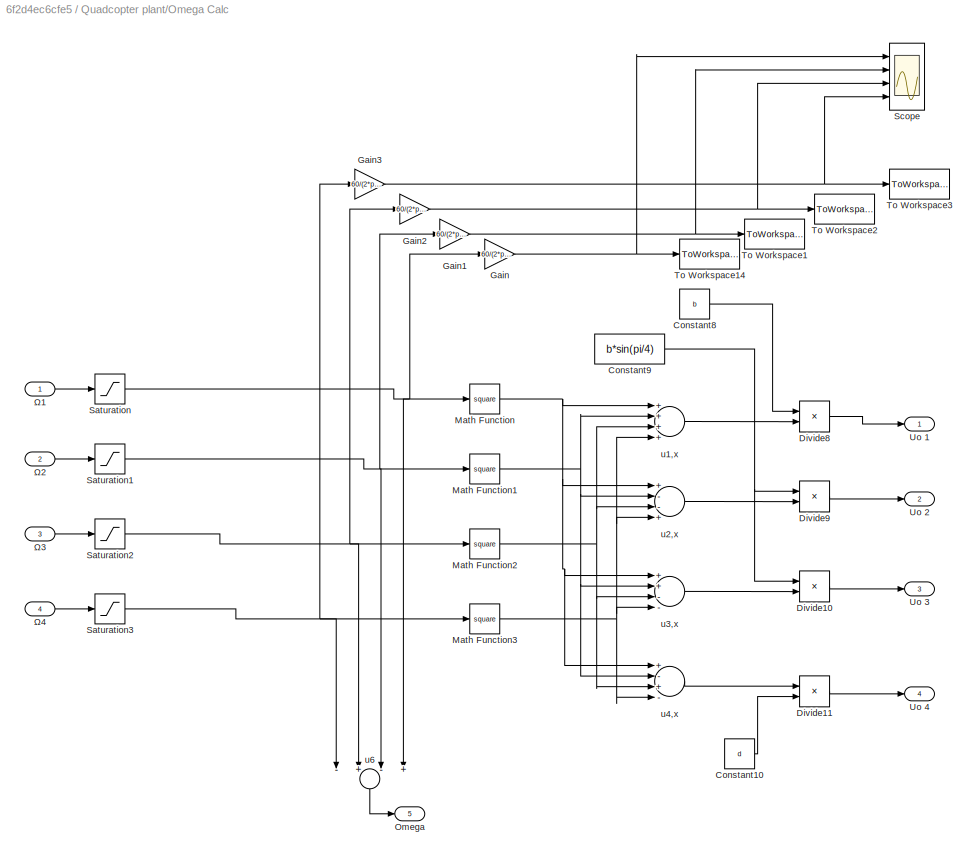
BLOCK [SubSystem] Quadcopter plant/Omega Calc
  Ports = [4, 5]
  RequestExecContextInheritance = off
  Variant = off
BLOCK [Constant] Quadcopter plant/Omega Calc/Constant10
  Value = d
BLOCK [Constant] Quadcopter plant/Omega Calc/Constant8
  Value = b
BLOCK [Constant] Quadcopter plant/Omega Calc/Constant9
  Value = b*sin(pi/4)
BLOCK [Product] Quadcopter plant/Omega Calc/Divide10
  InputSameDT = off
  Inputs = **
  OutDataTypeStr = Inherit: Inherit via internal rule
  Ports = [2, 1]
  RndMeth = Floor
  SaturateOnIntegerOverflow = off
BLOCK [Product] Quadcopter plant/Omega Calc/Divide11
  InputSameDT = off
  Inputs = **
  OutDataTypeStr = Inherit: Inherit via internal rule
  Ports = [2, 1]
  RndMeth = Floor
  SaturateOnIntegerOverflow = off
BLOCK [Product] Quadcopter plant/Omega Calc/Divide8
  InputSameDT = off
  Inputs = **
  OutDataTypeStr = Inherit: Inherit via internal rule
  Ports = [2, 1]
  RndMeth = Floor
  SaturateOnIntegerOverflow = off
BLOCK [Product] Quadcopter plant/Omega Calc/Divide9
  InputSameDT = off
  Inputs = **
  OutDataTypeStr = Inherit: Inherit via internal rule
  Ports = [2, 1]
  RndMeth = Floor
  SaturateOnIntegerOverflow = off
BLOCK [Gain] Quadcopter plant/Omega Calc/Gain
  Gain = 60/(2*pi)
  OutDataTypeStr = Inherit: Inherit via internal rule
  ParamDataTypeStr = Inherit: Inherit via internal rule
  SaturateOnIntegerOverflow = off
BLOCK [Gain] Quadcopter plant/Omega Calc/Gain1
  Gain = 60/(2*pi)
  OutDataTypeStr = Inherit: Inherit via internal rule
  ParamDataTypeStr = Inherit: Inherit via internal rule
  SaturateOnIntegerOverflow = off
BLOCK [Gain] Quadcopter plant/Omega Calc/Gain2
  Gain = 60/(2*pi)
  OutDataTypeStr = Inherit: Inherit via internal rule
  ParamDataTypeStr = Inherit: Inherit via internal rule
  SaturateOnIntegerOverflow = off
BLOCK [Gain] Quadcopter plant/Omega Calc/Gain3
  Gain = 60/(2*pi)
  OutDataTypeStr = Inherit: Inherit via internal rule
  ParamDataTypeStr = Inherit: Inherit via internal rule
  SaturateOnIntegerOverflow = off
BLOCK [Math] Quadcopter plant/Omega Calc/Math Function
  Operator = square
  Ports = [1, 1]
BLOCK [Math] Quadcopter plant/Omega Calc/Math Function1
  Operator = square
  Ports = [1, 1]
BLOCK [Math] Quadcopter plant/Omega Calc/Math Function2
  Operator = square
  Ports = [1, 1]
BLOCK [Math] Quadcopter plant/Omega Calc/Math Function3
  Operator = square
  Ports = [1, 1]
BLOCK [Outport] Quadcopter plant/Omega Calc/Omega
  IconDisplay = Port number
  Port = 5
BLOCK [Saturate] Quadcopter plant/Omega Calc/Saturation
  InputPortMap = u0
  LowerLimit = 0
  Ports = [1, 1]
  UpperLimit = inf
BLOCK [Saturate] Quadcopter plant/Omega Calc/Saturation1
  InputPortMap = u0
  LowerLimit = 0
  Ports = [1, 1]
  UpperLimit = inf
BLOCK [Saturate] Quadcopter plant/Omega Calc/Saturation2
  InputPortMap = u0
  LowerLimit = 0
  Ports = [1, 1]
  UpperLimit = inf
BLOCK [Saturate] Quadcopter plant/Omega Calc/Saturation3
  InputPortMap = u0
  LowerLimit = 0
  Ports = [1, 1]
  UpperLimit = inf
BLOCK [Scope] Quadcopter plant/Omega Calc/Scope
  NumInputPorts = 4
  Ports = [4]
  ScopeSpecificationString = Simulink.scopes.TimeScopeBlockCfg('CurrentConfiguration', extmgr.ConfigurationSet(extmgr.Configuration('Core','General UI',true),extmgr.Configuration('Core','Source UI',true),extmgr.Configuration('Sources','WiredSimulink',true,'DataLoggingVariableName','ScopeData1'),extmgr.Configuration('Visuals','Time Domain',true,'SerializedDisplays',{struct('MinYLimReal','-3958.24825','MaxYLimReal','35624.23421...<+1484ch>
BLOCK [ToWorkspace] Quadcopter plant/Omega Calc/To Workspace1
  FixptAsFi = on
  MaxDataPoints = inf
  Ports = [1]
  SampleTime = 0.001
  Save2DSignal = 2-D array (concatenate along first dimension)
  VariableName = RPM_2
BLOCK [ToWorkspace] Quadcopter plant/Omega Calc/To Workspace14
  FixptAsFi = on
  MaxDataPoints = inf
  Ports = [1]
  SampleTime = 0.001
  Save2DSignal = 2-D array (concatenate along first dimension)
  VariableName = RPM_1
BLOCK [ToWorkspace] Quadcopter plant/Omega Calc/To Workspace2
  FixptAsFi = on
  MaxDataPoints = inf
  Ports = [1]
  SampleTime = 0.001
  Save2DSignal = 2-D array (concatenate along first dimension)
  VariableName = RPM_3
BLOCK [ToWorkspace] Quadcopter plant/Omega Calc/To Workspace3
  FixptAsFi = on
  MaxDataPoints = inf
  Ports = [1]
  SampleTime = 0.001
  Save2DSignal = 2-D array (concatenate along first dimension)
  VariableName = RPM_4
BLOCK [Outport] Quadcopter plant/Omega Calc/Uo 1
  IconDisplay = Port number
BLOCK [Outport] Quadcopter plant/Omega Calc/Uo 2
  IconDisplay = Port number
  Port = 2
BLOCK [Outport] Quadcopter plant/Omega Calc/Uo 3
  IconDisplay = Port number
  Port = 3
BLOCK [Outport] Quadcopter plant/Omega Calc/Uo 4
  IconDisplay = Port number
  Port = 4
BLOCK [Sum] Quadcopter plant/Omega Calc/u1,x
  InputSameDT = off
  Inputs = ++++
  OutDataTypeStr = Inherit: Inherit via internal rule
  Ports = [4, 1]
  SaturateOnIntegerOverflow = off
BLOCK [Sum] Quadcopter plant/Omega Calc/u2,x
  InputSameDT = off
  Inputs = +--+
  OutDataTypeStr = Inherit: Inherit via internal rule
  Ports = [4, 1]
  SaturateOnIntegerOverflow = off
BLOCK [Sum] Quadcopter plant/Omega Calc/u3,x
  InputSameDT = off
  Inputs = ++--
  OutDataTypeStr = Inherit: Inherit via internal rule
  Ports = [4, 1]
  SaturateOnIntegerOverflow = off
BLOCK [Sum] Quadcopter plant/Omega Calc/u4,x
  InputSameDT = off
  Inputs = +-+-
  OutDataTypeStr = Inherit: Inherit via internal rule
  Ports = [4, 1]
  SaturateOnIntegerOverflow = off
BLOCK [Sum] Quadcopter plant/Omega Calc/u6
  InputSameDT = off
  Inputs = -+-+
  OutDataTypeStr = Inherit: Inherit via internal rule
  Ports = [4, 1]
  SaturateOnIntegerOverflow = off
BLOCK [Inport] Quadcopter plant/Omega Calc/Ω1
  IconDisplay = Port number
BLOCK [Inport] Quadcopter plant/Omega Calc/Ω2
  IconDisplay = Port number
  Port = 2
BLOCK [Inport] Quadcopter plant/Omega Calc/Ω3
  IconDisplay = Port number
  Port = 3
BLOCK [Inport] Quadcopter plant/Omega Calc/Ω4
  IconDisplay = Port number
  Port = 4
BLOCK [Outport] Quadcopter plant/Phi
  IconDisplay = Port number
  Port = 4
BLOCK [Outport] Quadcopter plant/Phi_dot
  IconDisplay = Port number
  Port = 10
BLOCK [Outport] Quadcopter plant/Psi
  IconDisplay = Port number
  Port = 6
BLOCK [Outport] Quadcopter plant/Psi_dot
  IconDisplay = Port number
  Port = 12
BLOCK [Outport] Quadcopter plant/Theta
  IconDisplay = Port number
  Port = 5
BLOCK [Outport] Quadcopter plant/Theta_dot
  IconDisplay = Port number
  Port = 11
BLOCK [Outport] Quadcopter plant/X
  IconDisplay = Port number
BLOCK [Outport] Quadcopter plant/X_dot_dot
  IconDisplay = Port number
  Port = 7
BLOCK [Outport] Quadcopter plant/Y
  IconDisplay = Port number
  Port = 2
BLOCK [Outport] Quadcopter plant/Y_dot_dot 
  IconDisplay = Port number
  Port = 8
BLOCK [Outport] Quadcopter plant/Z
  IconDisplay = Port number
  Port = 3
BLOCK [Outport] Quadcopter plant/Z_dot_dot
  IconDisplay = Port number
  Port = 9
BLOCK [Inport] Quadcopter plant/Ω1
  IconDisplay = Port number
BLOCK [Inport] Quadcopter plant/Ω2
  IconDisplay = Port number
  Port = 2
BLOCK [Inport] Quadcopter plant/Ω3
  IconDisplay = Port number
  Port = 3
BLOCK [Inport] Quadcopter plant/Ω4
  IconDisplay = Port number
  Port = 4
BLOCK [Reference] Ramp  REF=simulink/Sources/Ramp
  Ports = [0, 1]
  SourceBlock = simulink/Sources/Ramp
  SourceProductBaseCode = SL
  SourceProductName = Simulink
  SourceType = Ramp
BLOCK [Scope] Scope2
  NumInputPorts = 1
  Ports = [1]
  ScopeSpecificationString = Simulink.scopes.TimeScopeBlockCfg('CurrentConfiguration', extmgr.ConfigurationSet(extmgr.Configuration('Core','General UI',true),extmgr.Configuration('Core','Source UI',true),extmgr.Configuration('Sources','WiredSimulink',true,'DataLoggingVariableName','ScopeData3'),extmgr.Configuration('Visuals','Time Domain',true,'SerializedDisplays',{struct('MinYLimReal','-1.17363','MaxYLimReal','0.1304','YLabe...<+1405ch>
BLOCK [Terminator] Terminator1
BLOCK [Terminator] Terminator2
BLOCK [ToWorkspace] To Workspace
  FixptAsFi = on
  MaxDataPoints = inf
  Ports = [1]
  SampleTime = 0.001
  Save2DSignal = 2-D array (concatenate along first dimension)
  VariableName = Z
BLOCK [ToWorkspace] To Workspace1
  FixptAsFi = on
  MaxDataPoints = inf
  Ports = [1]
  SampleTime = 0.001
  Save2DSignal = 2-D array (concatenate along first dimension)
  VariableName = Z_d
BLOCK [ToWorkspace] To Workspace10
  FixptAsFi = on
  MaxDataPoints = inf
  Ports = [1]
  SampleTime = 0.001
  Save2DSignal = 2-D array (concatenate along first dimension)
  VariableName = Psi_dot_
BLOCK [ToWorkspace] To Workspace11
  FixptAsFi = on
  MaxDataPoints = inf
  Ports = [1]
  SampleTime = 0.001
  Save2DSignal = 2-D array (concatenate along first dimension)
  VariableName = U
BLOCK [ToWorkspace] To Workspace14
  FixptAsFi = on
  MaxDataPoints = inf
  Ports = [1]
  SampleTime = 0.001
  Save2DSignal = 2-D array (concatenate along first dimension)
  VariableName = time
BLOCK [ToWorkspace] To Workspace2
  FixptAsFi = on
  MaxDataPoints = inf
  Ports = [1]
  SampleTime = 0.001
  Save2DSignal = 2-D array (concatenate along first dimension)
  VariableName = Psi_dot_d_
BLOCK [ToWorkspace] To Workspace3
  FixptAsFi = on
  MaxDataPoints = inf
  Ports = [1]
  SampleTime = 0.001
  Save2DSignal = 2-D array (concatenate along first dimension)
  VariableName = Theta_d
BLOCK [ToWorkspace] To Workspace4
  FixptAsFi = on
  MaxDataPoints = inf
  Ports = [1]
  SampleTime = 0.001
  Save2DSignal = 2-D array (concatenate along first dimension)
  VariableName = Phi_d
BLOCK [ToWorkspace] To Workspace5
  FixptAsFi = on
  MaxDataPoints = inf
  Ports = [1]
  SampleTime = 0.001
  Save2DSignal = 2-D array (concatenate along first dimension)
  VariableName = Psi
BLOCK [ToWorkspace] To Workspace6
  FixptAsFi = on
  MaxDataPoints = inf
  Ports = [1]
  SampleTime = 0.001
  Save2DSignal = 2-D array (concatenate along first dimension)
  VariableName = Y
BLOCK [ToWorkspace] To Workspace7
  FixptAsFi = on
  MaxDataPoints = inf
  Ports = [1]
  SampleTime = 0.001
  Save2DSignal = 2-D array (concatenate along first dimension)
  VariableName = X
BLOCK [ToWorkspace] To Workspace8
  FixptAsFi = on
  MaxDataPoints = inf
  Ports = [1]
  SampleTime = 0.001
  Save2DSignal = 2-D array (concatenate along first dimension)
  VariableName = Theta
BLOCK [ToWorkspace] To Workspace9
  FixptAsFi = on
  MaxDataPoints = inf
  Ports = [1]
  SampleTime = 0.001
  Save2DSignal = 2-D array (concatenate along first dimension)
  VariableName = Phi
BLOCK [Outport] Z_o
  IconDisplay = Port number
BLOCK [Outport] r
  IconDisplay = Port number
  Port = 2
BLOCK [Outport] u 
  IconDisplay = Port number
  Port = 3
LINE Clock:1 -> To Workspace14:1
NET Constant:1 -> Controller:4, Controller:6, Controller:8, To Workspace2:1, To Workspace3:1, To Workspace4:1
NET Controller/Add10:1 -> Controller/Integrator5:1, Controller/Theta_P:1
NET Controller/Add11:1 -> Controller/Derivative7:1, Controller/Integrator4:1, Controller/Psi_P:1
NET Controller/Add12:1 -> Controller/Integrator7:1, Controller/Z_P:1
LINE Controller/Add13:1 -> Controller/Divide1:1
LINE Controller/Add14:1 -> Controller/Divide2:1
LINE Controller/Add15:1 -> Controller/Divide3:1
LINE Controller/Add16:1 -> Controller/Divide4:1
NET Controller/Add9:1 -> Controller/Integrator6:1, Controller/Phi_P:1
LINE Controller/Constant2:1 -> Controller/Divide4:2
NET Controller/Constant6:1 -> Controller/Divide2:2, Controller/Divide3:2
LINE Controller/Constant:1 -> Controller/Divide:2
LINE Controller/Derivative7:1 -> Controller/Psi_D:1
LINE Controller/Divide1:1 -> Controller/Saturation1:1
NET Controller/Divide2:1 -> Controller/Omega1^2, x:2, Controller/Omega2^2, x:2, Controller/Omega3^2, x:2, Controller/Omega4^2, x:2
NET Controller/Divide3:1 -> Controller/Omega1^2, x:3, Controller/Omega2^2, x:3, Controller/Omega3^2, x:3, Controller/Omega4^2, x:3
NET Controller/Divide4:1 -> Controller/Omega1^2, x:4, Controller/Omega2^2, x:4, Controller/Omega3^2, x:4, Controller/Omega4^2, x:4
NET Controller/Divide:1 -> Controller/Omega1^2, x:1, Controller/Omega2^2, x:1, Controller/Omega3^2, x:1, Controller/Omega4^2, x:1
NET Controller/Integrator1:1 -> Controller/Add9:2, Controller/cos Phi:1
NET Controller/Integrator2:1 -> Controller/Add10:2, Controller/cos Theta:1
LINE Controller/Integrator4:1 -> Controller/Psi_I:1
LINE Controller/Integrator5:1 -> Controller/Theta_I:1
LINE Controller/Integrator6:1 -> Controller/Phi_I:1
LINE Controller/Integrator7:1 -> Controller/Z_I :1
NET Controller/Integrator8:1 -> Controller/Integrator:1, Controller/Z_D:1
LINE Controller/Integrator:1 -> Controller/Add12:2
LINE Controller/Omega1^2, x:1 -> Controller/Sqrt:1
LINE Controller/Omega2^2, x:1 -> Controller/Sqrt1:1
LINE Controller/Omega3^2, x:1 -> Controller/Sqrt2:1
LINE Controller/Omega4^2, x:1 -> Controller/Sqrt3:1
LINE Controller/Phi_D:1 -> Controller/Add14:3
LINE Controller/Phi_I:1 -> Controller/Add14:2
LINE Controller/Phi_P:1 -> Controller/Add14:1
LINE Controller/Phi_d:1 -> Controller/Add9:1
NET Controller/Phi_dot:1 -> Controller/Integrator1:1, Controller/Phi_D:1
LINE Controller/Product1:1 -> Controller/Divide1:2
LINE Controller/Psi_D:1 -> Controller/Add16:3
LINE Controller/Psi_I:1 -> Controller/Add16:2
LINE Controller/Psi_P:1 -> Controller/Add16:1
LINE Controller/Psi_dot:1 -> Controller/Add11:1
LINE Controller/Psi_dot_d:1 -> Controller/Add11:2
NET Controller/Saturation1:1 -> Controller/Divide:1, Controller/U1:1
LINE Controller/Sqrt1:1 -> Controller/Ω2:1
LINE Controller/Sqrt2:1 -> Controller/Ω3:1
LINE Controller/Sqrt3:1 -> Controller/Ω4:1
LINE Controller/Sqrt:1 -> Controller/Ω1:1
LINE Controller/Theta_D:1 -> Controller/Add15:3
LINE Controller/Theta_I:1 -> Controller/Add15:2
LINE Controller/Theta_P:1 -> Controller/Add15:1
LINE Controller/Theta_d:1 -> Controller/Add10:1
NET Controller/Theta_dot:1 -> Controller/Integrator2:1, Controller/Theta_D:1
LINE Controller/Z_D:1 -> Controller/Add13:3
LINE Controller/Z_I :1 -> Controller/Add13:2
LINE Controller/Z_P:1 -> Controller/Add13:1
LINE Controller/Z_d:1 -> Controller/Add12:1
LINE Controller/Z_dot_dot:1 -> Controller/Integrator8:1
LINE Controller/cos Phi:1 -> Controller/Product1:1
LINE Controller/cos Theta:1 -> Controller/Product1:2
LINE Controller:1 -> Quadcopter plant:1
LINE Controller:2 -> Quadcopter plant:2
LINE Controller:3 -> Quadcopter plant:3
LINE Controller:4 -> Quadcopter plant:4
NET Controller:5 -> To Workspace11:1, u :1
LINE IMU/Accelerometer/ :1 -> IMU/Accelerometer/Add:1
NET IMU/Accelerometer/Accel_bias:1 -> IMU/Accelerometer/Add3:1, IMU/Accelerometer/Add4:1, IMU/Accelerometer/Add5:1
LINE IMU/Accelerometer/Add1:1 -> IMU/Accelerometer/Add4:2
LINE IMU/Accelerometer/Add2:1 -> IMU/Accelerometer/Add5:2
LINE IMU/Accelerometer/Add3:1 -> IMU/Accelerometer/X_dot_dot_out:1
LINE IMU/Accelerometer/Add4:1 -> IMU/Accelerometer/Y_dot_dot_out:1
LINE IMU/Accelerometer/Add5:1 -> IMU/Accelerometer/Z_dot_dot_out:1
LINE IMU/Accelerometer/Add:1 -> IMU/Accelerometer/Add3:2
LINE IMU/Accelerometer/Random Number1:1 -> IMU/Accelerometer/Add1:1
LINE IMU/Accelerometer/Random Number2:1 -> IMU/Accelerometer/Add2:1
LINE IMU/Accelerometer/Transfer Fcn1:1 -> IMU/Accelerometer/Add1:2
LINE IMU/Accelerometer/Transfer Fcn2:1 -> IMU/Accelerometer/Add2:2
LINE IMU/Accelerometer/Transfer Fcn:1 -> IMU/Accelerometer/Add:2
LINE IMU/Accelerometer/X_dot_dot:1 -> IMU/Accelerometer/Transfer Fcn:1
LINE IMU/Accelerometer/Y_dot_dot :1 -> IMU/Accelerometer/Transfer Fcn1:1
LINE IMU/Accelerometer/Z_dot_dpt :1 -> IMU/Accelerometer/Transfer Fcn2:1
NET IMU/Accelerometer:1 -> IMU/To Workspace:1, IMU/X_dot_dot :1
NET IMU/Accelerometer:2 -> IMU/To Workspace1:1, IMU/Y_dot_dot :1
LINE IMU/Accelerometer:3 -> IMU/To Workspace2:1
LINE IMU/Demux:1 -> IMU/Accelerometer:1
LINE IMU/Demux:2 -> IMU/Accelerometer:2
LINE IMU/Demux:3 -> IMU/Accelerometer:3
LINE IMU/Gyroscope/Add1:1 -> IMU/Gyroscope/Add4:2
LINE IMU/Gyroscope/Add2:1 -> IMU/Gyroscope/Add5:2
LINE IMU/Gyroscope/Add3:1 -> IMU/Gyroscope/Phi_dot_out:1
LINE IMU/Gyroscope/Add4:1 -> IMU/Gyroscope/Theta_dot_out:1
LINE IMU/Gyroscope/Add5:1 -> IMU/Gyroscope/Psi_dot_out:1
LINE IMU/Gyroscope/Add:1 -> IMU/Gyroscope/Add3:2
NET IMU/Gyroscope/Gyro_bias:1 -> IMU/Gyroscope/Add3:1, IMU/Gyroscope/Add4:1, IMU/Gyroscope/Add5:1
LINE IMU/Gyroscope/Phi_dot:1 -> IMU/Gyroscope/Transfer Fcn:1
LINE IMU/Gyroscope/Psi_dot:1 -> IMU/Gyroscope/Transfer Fcn2:1
LINE IMU/Gyroscope/Random Number1:1 -> IMU/Gyroscope/Add1:1
LINE IMU/Gyroscope/Random Number2:1 -> IMU/Gyroscope/Add2:1
LINE IMU/Gyroscope/Random Number:1 -> IMU/Gyroscope/Add:1
LINE IMU/Gyroscope/Theta_dot:1 -> IMU/Gyroscope/Transfer Fcn1:1
LINE IMU/Gyroscope/Transfer Fcn1:1 -> IMU/Gyroscope/Add1:2
LINE IMU/Gyroscope/Transfer Fcn2:1 -> IMU/Gyroscope/Add2:2
LINE IMU/Gyroscope/Transfer Fcn:1 -> IMU/Gyroscope/Add:2
NET IMU/Gyroscope:1 -> IMU/Phi_dot :1, IMU/To Workspace3:1
NET IMU/Gyroscope:2 -> IMU/Theta_dot :1, IMU/To Workspace4:1
NET IMU/Gyroscope:3 -> IMU/Psi_dot :1, IMU/To Workspace5:1
LINE IMU/Integrator1:1 -> IMU/MATLAB Function:5
LINE IMU/Integrator2:1 -> IMU/MATLAB Function:6
LINE IMU/Integrator:1 -> IMU/MATLAB Function:4
LINE IMU/MATLAB Function:1 -> IMU/Demux:1
NET IMU/Phi_dot:1 -> IMU/Gyroscope:1, IMU/Integrator:1
NET IMU/Psi_dot:1 -> IMU/Gyroscope:3, IMU/Integrator2:1
NET IMU/Theta_dot:1 -> IMU/Gyroscope:2, IMU/Integrator1:1
LINE IMU/X_dot_dot:1 -> IMU/MATLAB Function:1
LINE IMU/Y_dot_dot:1 -> IMU/MATLAB Function:2
NET IMU/Z_dot_dot:1 -> IMU/MATLAB Function:3, IMU/Z_dot_dot :1
LINE IMU:1 -> Terminator1:1
LINE IMU:2 -> Terminator2:1
LINE IMU:3 -> Controller:1
LINE IMU:4 -> Controller:3
LINE IMU:5 -> Controller:5
NET IMU:6 -> Controller:7, To Workspace10:1
LINE Quadcopter plant/Angles->accels1/Constant:1 -> Quadcopter plant/Angles->accels1/Divide:2
NET Quadcopter plant/Angles->accels1/Divide:1 -> Quadcopter plant/Angles->accels1/Subsystem1:5, Quadcopter plant/Angles->accels1/Subsystem2:4, Quadcopter plant/Angles->accels1/Subsystem:5
NET Quadcopter plant/Angles->accels1/Phi:1 -> Quadcopter plant/Angles->accels1/Subsystem1:2, Quadcopter plant/Angles->accels1/Subsystem2:2, Quadcopter plant/Angles->accels1/Subsystem:2
NET Quadcopter plant/Angles->accels1/Psi:1 -> Quadcopter plant/Angles->accels1/Subsystem1:4, Quadcopter plant/Angles->accels1/Subsystem:4
LINE Quadcopter plant/Angles->accels1/Subsystem/Add1:1 -> Quadcopter plant/Angles->accels1/Subsystem/X_dot_dot:1
LINE Quadcopter plant/Angles->accels1/Subsystem/Add:1 -> Quadcopter plant/Angles->accels1/Subsystem/Product2:2
LINE Quadcopter plant/Angles->accels1/Subsystem/Constant:1 -> Quadcopter plant/Angles->accels1/Subsystem/Product3:2
LINE Quadcopter plant/Angles->accels1/Subsystem/Cos1:1 -> Quadcopter plant/Angles->accels1/Subsystem/Product1:1
LINE Quadcopter plant/Angles->accels1/Subsystem/Cos:1 -> Quadcopter plant/Angles->accels1/Subsystem/Product1:2
NET Quadcopter plant/Angles->accels1/Subsystem/Phi:1 -> Quadcopter plant/Angles->accels1/Subsystem/Cos1:1, Quadcopter plant/Angles->accels1/Subsystem/Sin1:1
LINE Quadcopter plant/Angles->accels1/Subsystem/Product1:1 -> Quadcopter plant/Angles->accels1/Subsystem/Add:2
LINE Quadcopter plant/Angles->accels1/Subsystem/Product2:1 -> Quadcopter plant/Angles->accels1/Subsystem/Add1:1
LINE Quadcopter plant/Angles->accels1/Subsystem/Product3:1 -> Quadcopter plant/Angles->accels1/Subsystem/Add1:2
LINE Quadcopter plant/Angles->accels1/Subsystem/Product:1 -> Quadcopter plant/Angles->accels1/Subsystem/Add:1
NET Quadcopter plant/Angles->accels1/Subsystem/Psi:1 -> Quadcopter plant/Angles->accels1/Subsystem/Cos:1, Quadcopter plant/Angles->accels1/Subsystem/Sin:1
LINE Quadcopter plant/Angles->accels1/Subsystem/Sin1:1 -> Quadcopter plant/Angles->accels1/Subsystem/Product:1
LINE Quadcopter plant/Angles->accels1/Subsystem/Sin2:1 -> Quadcopter plant/Angles->accels1/Subsystem/Product1:3
LINE Quadcopter plant/Angles->accels1/Subsystem/Sin:1 -> Quadcopter plant/Angles->accels1/Subsystem/Product:2
LINE Quadcopter plant/Angles->accels1/Subsystem/Theta:1 -> Quadcopter plant/Angles->accels1/Subsystem/Sin2:1
LINE Quadcopter plant/Angles->accels1/Subsystem/U1//M:1 -> Quadcopter plant/Angles->accels1/Subsystem/Product2:1
LINE Quadcopter plant/Angles->accels1/Subsystem/X_dot:1 -> Quadcopter plant/Angles->accels1/Subsystem/Product3:1
LINE Quadcopter plant/Angles->accels1/Subsystem1/Add1:1 -> Quadcopter plant/Angles->accels1/Subsystem1/Product5:2
LINE Quadcopter plant/Angles->accels1/Subsystem1/Add2:1 -> Quadcopter plant/Angles->accels1/Subsystem1/Y_dot_dot:1
LINE Quadcopter plant/Angles->accels1/Subsystem1/Constant:1 -> Quadcopter plant/Angles->accels1/Subsystem1/Product1:2
LINE Quadcopter plant/Angles->accels1/Subsystem1/Cos1:1 -> Quadcopter plant/Angles->accels1/Subsystem1/Product4:1
LINE Quadcopter plant/Angles->accels1/Subsystem1/Cos:1 -> Quadcopter plant/Angles->accels1/Subsystem1/Product3:2
NET Quadcopter plant/Angles->accels1/Subsystem1/Phi:1 -> Quadcopter plant/Angles->accels1/Subsystem1/Cos1:1, Quadcopter plant/Angles->accels1/Subsystem1/Sin1:1
LINE Quadcopter plant/Angles->accels1/Subsystem1/Product1:1 -> Quadcopter plant/Angles->accels1/Subsystem1/Add2:2
LINE Quadcopter plant/Angles->accels1/Subsystem1/Product3:1 -> Quadcopter plant/Angles->accels1/Subsystem1/Add1:1
LINE Quadcopter plant/Angles->accels1/Subsystem1/Product4:1 -> Quadcopter plant/Angles->accels1/Subsystem1/Add1:2
LINE Quadcopter plant/Angles->accels1/Subsystem1/Product5:1 -> Quadcopter plant/Angles->accels1/Subsystem1/Add2:1
NET Quadcopter plant/Angles->accels1/Subsystem1/Psi:1 -> Quadcopter plant/Angles->accels1/Subsystem1/Cos:1, Quadcopter plant/Angles->accels1/Subsystem1/Sin:1
LINE Quadcopter plant/Angles->accels1/Subsystem1/Sin1:1 -> Quadcopter plant/Angles->accels1/Subsystem1/Product3:1
LINE Quadcopter plant/Angles->accels1/Subsystem1/Sin2:1 -> Quadcopter plant/Angles->accels1/Subsystem1/Product4:3
LINE Quadcopter plant/Angles->accels1/Subsystem1/Sin:1 -> Quadcopter plant/Angles->accels1/Subsystem1/Product4:2
LINE Quadcopter plant/Angles->accels1/Subsystem1/Theta:1 -> Quadcopter plant/Angles->accels1/Subsystem1/Sin2:1
LINE Quadcopter plant/Angles->accels1/Subsystem1/U1//M:1 -> Quadcopter plant/Angles->accels1/Subsystem1/Product5:1
LINE Quadcopter plant/Angles->accels1/Subsystem1/Y_dot:1 -> Quadcopter plant/Angles->accels1/Subsystem1/Product1:1
LINE Quadcopter plant/Angles->accels1/Subsystem1:1 -> Quadcopter plant/Angles->accels1/Ydot dot:1
LINE Quadcopter plant/Angles->accels1/Subsystem2/Add1:1 -> Quadcopter plant/Angles->accels1/Subsystem2/Z_dot_dot:1
LINE Quadcopter plant/Angles->accels1/Subsystem2/Add2:1 -> Quadcopter plant/Angles->accels1/Subsystem2/Add1:1
LINE Quadcopter plant/Angles->accels1/Subsystem2/Constant2:1 -> Quadcopter plant/Angles->accels1/Subsystem2/Add2:1
LINE Quadcopter plant/Angles->accels1/Subsystem2/Constant:1 -> Quadcopter plant/Angles->accels1/Subsystem2/Product1:2
LINE Quadcopter plant/Angles->accels1/Subsystem2/Cos1:1 -> Quadcopter plant/Angles->accels1/Subsystem2/Product6:2
LINE Quadcopter plant/Angles->accels1/Subsystem2/Cos:1 -> Quadcopter plant/Angles->accels1/Subsystem2/Product6:1
LINE Quadcopter plant/Angles->accels1/Subsystem2/Phi:1 -> Quadcopter plant/Angles->accels1/Subsystem2/Cos1:1
LINE Quadcopter plant/Angles->accels1/Subsystem2/Product1:1 -> Quadcopter plant/Angles->accels1/Subsystem2/Add1:2
LINE Quadcopter plant/Angles->accels1/Subsystem2/Product6:1 -> Quadcopter plant/Angles->accels1/Subsystem2/Add2:2
LINE Quadcopter plant/Angles->accels1/Subsystem2/Theta:1 -> Quadcopter plant/Angles->accels1/Subsystem2/Cos:1
LINE Quadcopter plant/Angles->accels1/Subsystem2/U1//m:1 -> Quadcopter plant/Angles->accels1/Subsystem2/Product6:3
LINE Quadcopter plant/Angles->accels1/Subsystem2/Z_dot:1 -> Quadcopter plant/Angles->accels1/Subsystem2/Product1:1
LINE Quadcopter plant/Angles->accels1/Subsystem2:1 -> Quadcopter plant/Angles->accels1/Z dot dot:1
LINE Quadcopter plant/Angles->accels1/Subsystem:1 -> Quadcopter plant/Angles->accels1/X dot dot:1
NET Quadcopter plant/Angles->accels1/Theta:1 -> Quadcopter plant/Angles->accels1/Subsystem1:3, Quadcopter plant/Angles->accels1/Subsystem2:3, Quadcopter plant/Angles->accels1/Subsystem:3
LINE Quadcopter plant/Angles->accels1/U1:1 -> Quadcopter plant/Angles->accels1/Divide:1
LINE Quadcopter plant/Angles->accels1/X_dot:1 -> Quadcopter plant/Angles->accels1/Subsystem:1
LINE Quadcopter plant/Angles->accels1/Y_dot:1 -> Quadcopter plant/Angles->accels1/Subsystem1:1
LINE Quadcopter plant/Angles->accels1/Z_dot:1 -> Quadcopter plant/Angles->accels1/Subsystem2:1
NET Quadcopter plant/Angles->accels1:1 -> Quadcopter plant/Integrator1:1, Quadcopter plant/X_dot_dot:1
NET Quadcopter plant/Angles->accels1:2 -> Quadcopter plant/Integrator3:1, Quadcopter plant/Y_dot_dot :1
NET Quadcopter plant/Angles->accels1:3 -> Quadcopter plant/Integrator5:1, Quadcopter plant/Z_dot_dot:1
NET Quadcopter plant/Inputs->ang_accel1/Phi dot:1 -> Quadcopter plant/Inputs->ang_accel1/Subsystem1:1, Quadcopter plant/Inputs->ang_accel1/Subsystem2:4
NET Quadcopter plant/Inputs->ang_accel1/Psi dot:1 -> Quadcopter plant/Inputs->ang_accel1/Subsystem2:2, Quadcopter plant/Inputs->ang_accel1/Subsystem:3
LINE Quadcopter plant/Inputs->ang_accel1/Subsystem/Add:1 -> Quadcopter plant/Inputs->ang_accel1/Subsystem/Divide:1
LINE Quadcopter plant/Inputs->ang_accel1/Subsystem/Constant1:1 -> Quadcopter plant/Inputs->ang_accel1/Subsystem/Product1:1
LINE Quadcopter plant/Inputs->ang_accel1/Subsystem/Constant2:1 -> Quadcopter plant/Inputs->ang_accel1/Subsystem/Product2:1
LINE Quadcopter plant/Inputs->ang_accel1/Subsystem/Constant3:1 -> Quadcopter plant/Inputs->ang_accel1/Subsystem/Divide:2
LINE Quadcopter plant/Inputs->ang_accel1/Subsystem/Constant:1 -> Quadcopter plant/Inputs->ang_accel1/Subsystem/Product:3
LINE Quadcopter plant/Inputs->ang_accel1/Subsystem/Divide:1 -> Quadcopter plant/Inputs->ang_accel1/Subsystem/Phi_dot_dot:1
LINE Quadcopter plant/Inputs->ang_accel1/Subsystem/Product1:1 -> Quadcopter plant/Inputs->ang_accel1/Subsystem/Add:2
LINE Quadcopter plant/Inputs->ang_accel1/Subsystem/Product2:1 -> Quadcopter plant/Inputs->ang_accel1/Subsystem/Add:1
LINE Quadcopter plant/Inputs->ang_accel1/Subsystem/Product:1 -> Quadcopter plant/Inputs->ang_accel1/Subsystem/Add:3
LINE Quadcopter plant/Inputs->ang_accel1/Subsystem/Psi_dot:1 -> Quadcopter plant/Inputs->ang_accel1/Subsystem/Product:2
NET Quadcopter plant/Inputs->ang_accel1/Subsystem/Theta_dot:1 -> Quadcopter plant/Inputs->ang_accel1/Subsystem/Product1:3, Quadcopter plant/Inputs->ang_accel1/Subsystem/Product:1
LINE Quadcopter plant/Inputs->ang_accel1/Subsystem/U2:1 -> Quadcopter plant/Inputs->ang_accel1/Subsystem/Product2:2
LINE Quadcopter plant/Inputs->ang_accel1/Subsystem/Ωr:1 -> Quadcopter plant/Inputs->ang_accel1/Subsystem/Product1:2
LINE Quadcopter plant/Inputs->ang_accel1/Subsystem1/Add2:1 -> Quadcopter plant/Inputs->ang_accel1/Subsystem1/Divide2:1
LINE Quadcopter plant/Inputs->ang_accel1/Subsystem1/Constant11:1 -> Quadcopter plant/Inputs->ang_accel1/Subsystem1/Divide2:2
LINE Quadcopter plant/Inputs->ang_accel1/Subsystem1/Constant8:1 -> Quadcopter plant/Inputs->ang_accel1/Subsystem1/Product6:3
LINE Quadcopter plant/Inputs->ang_accel1/Subsystem1/Divide2:1 -> Quadcopter plant/Inputs->ang_accel1/Subsystem1/Psi_dot_dot:1
LINE Quadcopter plant/Inputs->ang_accel1/Subsystem1/Phi_dot:1 -> Quadcopter plant/Inputs->ang_accel1/Subsystem1/Product6:2
LINE Quadcopter plant/Inputs->ang_accel1/Subsystem1/Product6:1 -> Quadcopter plant/Inputs->ang_accel1/Subsystem1/Add2:2
LINE Quadcopter plant/Inputs->ang_accel1/Subsystem1/Theta_dot:1 -> Quadcopter plant/Inputs->ang_accel1/Subsystem1/Product6:1
LINE Quadcopter plant/Inputs->ang_accel1/Subsystem1/U4:1 -> Quadcopter plant/Inputs->ang_accel1/Subsystem1/Add2:1
LINE Quadcopter plant/Inputs->ang_accel1/Subsystem1:1 -> Quadcopter plant/Inputs->ang_accel1/Psi dot dot:1
LINE Quadcopter plant/Inputs->ang_accel1/Subsystem2/Add1:1 -> Quadcopter plant/Inputs->ang_accel1/Subsystem2/Divide1:1
LINE Quadcopter plant/Inputs->ang_accel1/Subsystem2/Constant4:1 -> Quadcopter plant/Inputs->ang_accel1/Subsystem2/Product3:3
LINE Quadcopter plant/Inputs->ang_accel1/Subsystem2/Constant5:1 -> Quadcopter plant/Inputs->ang_accel1/Subsystem2/Product4:1
LINE Quadcopter plant/Inputs->ang_accel1/Subsystem2/Constant6:1 -> Quadcopter plant/Inputs->ang_accel1/Subsystem2/Product5:1
LINE Quadcopter plant/Inputs->ang_accel1/Subsystem2/Constant7:1 -> Quadcopter plant/Inputs->ang_accel1/Subsystem2/Divide1:2
LINE Quadcopter plant/Inputs->ang_accel1/Subsystem2/Divide1:1 -> Quadcopter plant/Inputs->ang_accel1/Subsystem2/Theta_dot_dot:1
NET Quadcopter plant/Inputs->ang_accel1/Subsystem2/Phi_dot:1 -> Quadcopter plant/Inputs->ang_accel1/Subsystem2/Product3:1, Quadcopter plant/Inputs->ang_accel1/Subsystem2/Product4:3
LINE Quadcopter plant/Inputs->ang_accel1/Subsystem2/Product3:1 -> Quadcopter plant/Inputs->ang_accel1/Subsystem2/Add1:3
LINE Quadcopter plant/Inputs->ang_accel1/Subsystem2/Product4:1 -> Quadcopter plant/Inputs->ang_accel1/Subsystem2/Add1:2
LINE Quadcopter plant/Inputs->ang_accel1/Subsystem2/Product5:1 -> Quadcopter plant/Inputs->ang_accel1/Subsystem2/Add1:1
LINE Quadcopter plant/Inputs->ang_accel1/Subsystem2/Psi_dot:1 -> Quadcopter plant/Inputs->ang_accel1/Subsystem2/Product3:2
LINE Quadcopter plant/Inputs->ang_accel1/Subsystem2/U3:1 -> Quadcopter plant/Inputs->ang_accel1/Subsystem2/Product5:2
LINE Quadcopter plant/Inputs->ang_accel1/Subsystem2/Ωr:1 -> Quadcopter plant/Inputs->ang_accel1/Subsystem2/Product4:2
LINE Quadcopter plant/Inputs->ang_accel1/Subsystem2:1 -> Quadcopter plant/Inputs->ang_accel1/Theta dot dot:1
LINE Quadcopter plant/Inputs->ang_accel1/Subsystem:1 -> Quadcopter plant/Inputs->ang_accel1/Phi dot dot:1
NET Quadcopter plant/Inputs->ang_accel1/Theta dot:1 -> Quadcopter plant/Inputs->ang_accel1/Subsystem1:2, Quadcopter plant/Inputs->ang_accel1/Subsystem:2
LINE Quadcopter plant/Inputs->ang_accel1/U2:1 -> Quadcopter plant/Inputs->ang_accel1/Subsystem:1
LINE Quadcopter plant/Inputs->ang_accel1/U3:1 -> Quadcopter plant/Inputs->ang_accel1/Subsystem2:3
LINE Quadcopter plant/Inputs->ang_accel1/U4:1 -> Quadcopter plant/Inputs->ang_accel1/Subsystem1:3
NET Quadcopter plant/Inputs->ang_accel1/Ωr:1 -> Quadcopter plant/Inputs->ang_accel1/Subsystem2:1, Quadcopter plant/Inputs->ang_accel1/Subsystem:4
LINE Quadcopter plant/Inputs->ang_accel1:1 -> Quadcopter plant/Integrator9:1
LINE Quadcopter plant/Inputs->ang_accel1:2 -> Quadcopter plant/Integrator10:1
LINE Quadcopter plant/Inputs->ang_accel1:3 -> Quadcopter plant/Integrator11:1
NET Quadcopter plant/Integrator10:1 -> Quadcopter plant/Inputs->ang_accel1:2, Quadcopter plant/Integrator7:1, Quadcopter plant/Theta_dot:1
NET Quadcopter plant/Integrator11:1 -> Quadcopter plant/Inputs->ang_accel1:3, Quadcopter plant/Integrator8:1, Quadcopter plant/Psi_dot:1
LINE Quadcopter plant/Integrator12:1 -> Quadcopter plant/Z:1
NET Quadcopter plant/Integrator1:1 -> Quadcopter plant/Angles->accels1:1, Quadcopter plant/Integrator2:1
LINE Quadcopter plant/Integrator2:1 -> Quadcopter plant/X:1
NET Quadcopter plant/Integrator3:1 -> Quadcopter plant/Angles->accels1:2, Quadcopter plant/Integrator4:1
LINE Quadcopter plant/Integrator4:1 -> Quadcopter plant/Y:1
NET Quadcopter plant/Integrator5:1 -> Quadcopter plant/Angles->accels1:3, Quadcopter plant/Integrator12:1
NET Quadcopter plant/Integrator6:1 -> Quadcopter plant/Angles->accels1:4, Quadcopter plant/Phi:1
NET Quadcopter plant/Integrator7:1 -> Quadcopter plant/Angles->accels1:5, Quadcopter plant/Theta:1
NET Quadcopter plant/Integrator8:1 -> Quadcopter plant/Angles->accels1:6, Quadcopter plant/Psi:1
NET Quadcopter plant/Integrator9:1 -> Quadcopter plant/Inputs->ang_accel1:1, Quadcopter plant/Integrator6:1, Quadcopter plant/Phi_dot:1
LINE Quadcopter plant/Omega Calc/Constant10:1 -> Quadcopter plant/Omega Calc/Divide11:2
LINE Quadcopter plant/Omega Calc/Constant8:1 -> Quadcopter plant/Omega Calc/Divide8:1
NET Quadcopter plant/Omega Calc/Constant9:1 -> Quadcopter plant/Omega Calc/Divide10:1, Quadcopter plant/Omega Calc/Divide9:1
LINE Quadcopter plant/Omega Calc/Divide10:1 -> Quadcopter plant/Omega Calc/Uo 3:1
LINE Quadcopter plant/Omega Calc/Divide11:1 -> Quadcopter plant/Omega Calc/Uo 4:1
LINE Quadcopter plant/Omega Calc/Divide8:1 -> Quadcopter plant/Omega Calc/Uo 1:1
LINE Quadcopter plant/Omega Calc/Divide9:1 -> Quadcopter plant/Omega Calc/Uo 2:1
NET Quadcopter plant/Omega Calc/Gain1:1 -> Quadcopter plant/Omega Calc/Scope:2, Quadcopter plant/Omega Calc/To Workspace1:1
NET Quadcopter plant/Omega Calc/Gain2:1 -> Quadcopter plant/Omega Calc/Scope:3, Quadcopter plant/Omega Calc/To Workspace2:1
NET Quadcopter plant/Omega Calc/Gain3:1 -> Quadcopter plant/Omega Calc/Scope:4, Quadcopter plant/Omega Calc/To Workspace3:1
NET Quadcopter plant/Omega Calc/Gain:1 -> Quadcopter plant/Omega Calc/Scope:1, Quadcopter plant/Omega Calc/To Workspace14:1
NET Quadcopter plant/Omega Calc/Math Function1:1 -> Quadcopter plant/Omega Calc/u1,x:2, Quadcopter plant/Omega Calc/u2,x:2, Quadcopter plant/Omega Calc/u3,x:2, Quadcopter plant/Omega Calc/u4,x:2
NET Quadcopter plant/Omega Calc/Math Function2:1 -> Quadcopter plant/Omega Calc/u1,x:3, Quadcopter plant/Omega Calc/u2,x:3, Quadcopter plant/Omega Calc/u3,x:3, Quadcopter plant/Omega Calc/u4,x:3
NET Quadcopter plant/Omega Calc/Math Function3:1 -> Quadcopter plant/Omega Calc/u1,x:4, Quadcopter plant/Omega Calc/u2,x:4, Quadcopter plant/Omega Calc/u3,x:4, Quadcopter plant/Omega Calc/u4,x:4
NET Quadcopter plant/Omega Calc/Math Function:1 -> Quadcopter plant/Omega Calc/u1,x:1, Quadcopter plant/Omega Calc/u2,x:1, Quadcopter plant/Omega Calc/u3,x:1, Quadcopter plant/Omega Calc/u4,x:1
NET Quadcopter plant/Omega Calc/Saturation1:1 -> Quadcopter plant/Omega Calc/Gain1:1, Quadcopter plant/Omega Calc/Math Function1:1, Quadcopter plant/Omega Calc/u6:3
NET Quadcopter plant/Omega Calc/Saturation2:1 -> Quadcopter plant/Omega Calc/Gain2:1, Quadcopter plant/Omega Calc/Math Function2:1, Quadcopter plant/Omega Calc/u6:2
NET Quadcopter plant/Omega Calc/Saturation3:1 -> Quadcopter plant/Omega Calc/Gain3:1, Quadcopter plant/Omega Calc/Math Function3:1, Quadcopter plant/Omega Calc/u6:1
NET Quadcopter plant/Omega Calc/Saturation:1 -> Quadcopter plant/Omega Calc/Gain:1, Quadcopter plant/Omega Calc/Math Function:1, Quadcopter plant/Omega Calc/u6:4
LINE Quadcopter plant/Omega Calc/u1,x:1 -> Quadcopter plant/Omega Calc/Divide8:2
LINE Quadcopter plant/Omega Calc/u2,x:1 -> Quadcopter plant/Omega Calc/Divide9:2
LINE Quadcopter plant/Omega Calc/u3,x:1 -> Quadcopter plant/Omega Calc/Divide10:2
LINE Quadcopter plant/Omega Calc/u4,x:1 -> Quadcopter plant/Omega Calc/Divide11:1
LINE Quadcopter plant/Omega Calc/u6:1 -> Quadcopter plant/Omega Calc/Omega:1
LINE Quadcopter plant/Omega Calc/Ω1:1 -> Quadcopter plant/Omega Calc/Saturation:1
LINE Quadcopter plant/Omega Calc/Ω2:1 -> Quadcopter plant/Omega Calc/Saturation1:1
LINE Quadcopter plant/Omega Calc/Ω3:1 -> Quadcopter plant/Omega Calc/Saturation2:1
LINE Quadcopter plant/Omega Calc/Ω4:1 -> Quadcopter plant/Omega Calc/Saturation3:1
LINE Quadcopter plant/Omega Calc:1 -> Quadcopter plant/Angles->accels1:7
LINE Quadcopter plant/Omega Calc:2 -> Quadcopter plant/Inputs->ang_accel1:4
LINE Quadcopter plant/Omega Calc:3 -> Quadcopter plant/Inputs->ang_accel1:5
LINE Quadcopter plant/Omega Calc:4 -> Quadcopter plant/Inputs->ang_accel1:6
LINE Quadcopter plant/Omega Calc:5 -> Quadcopter plant/Inputs->ang_accel1:7
LINE Quadcopter plant/Ω1:1 -> Quadcopter plant/Omega Calc:1
LINE Quadcopter plant/Ω2:1 -> Quadcopter plant/Omega Calc:2
LINE Quadcopter plant/Ω3:1 -> Quadcopter plant/Omega Calc:3
LINE Quadcopter plant/Ω4:1 -> Quadcopter plant/Omega Calc:4
LINE Quadcopter plant:1 -> To Workspace7:1
LINE Quadcopter plant:10 -> IMU:4
LINE Quadcopter plant:11 -> IMU:5
LINE Quadcopter plant:12 -> IMU:6
LINE Quadcopter plant:2 -> To Workspace6:1
NET Quadcopter plant:3 -> Scope2:1, To Workspace:1, Z_o:1
LINE Quadcopter plant:4 -> To Workspace9:1
LINE Quadcopter plant:5 -> To Workspace8:1
LINE Quadcopter plant:6 -> To Workspace5:1
LINE Quadcopter plant:7 -> IMU:1
LINE Quadcopter plant:8 -> IMU:2
LINE Quadcopter plant:9 -> IMU:3
NET Ramp:1 -> Controller:2, To Workspace1:1, r:1
note: NET lines group one-source signal fan-out (src -> all destinations, sorted); 1:1 wires keep LINE
CHART IMU/MATLAB Function states=1 transitions=1
  STATE_LABEL 'eML_blk_kernel()'
  STATE_LABEL 'SCRIPT:\nfunction Accel_vec = World2Body(Xdd,Ydd,Zdd,Phi,Theta,Psi)\n\nTrans_mat=[(cos(Psi)*cos(Theta)), (-sin(Psi)*cos(Phi)+cos(Psi)*sin(Theta)*sin(Phi)), (sin(Psi)*sin(Phi)+cos(Psi)*sin(Theta)*cos(Phi));...\n          (sin(Psi)*cos(Theta)), (cos(Psi)*cos(Phi)+sin(Theta)*sin(Psi)*sin(Phi)), (-cos(Psi)*sin(Phi)+sin(Theta)*sin(Psi)*cos(Phi));...\n          (-sin(Theta)), (cos(Theta)*sin(Phi)), (cos(Thet...<+89ch>'
